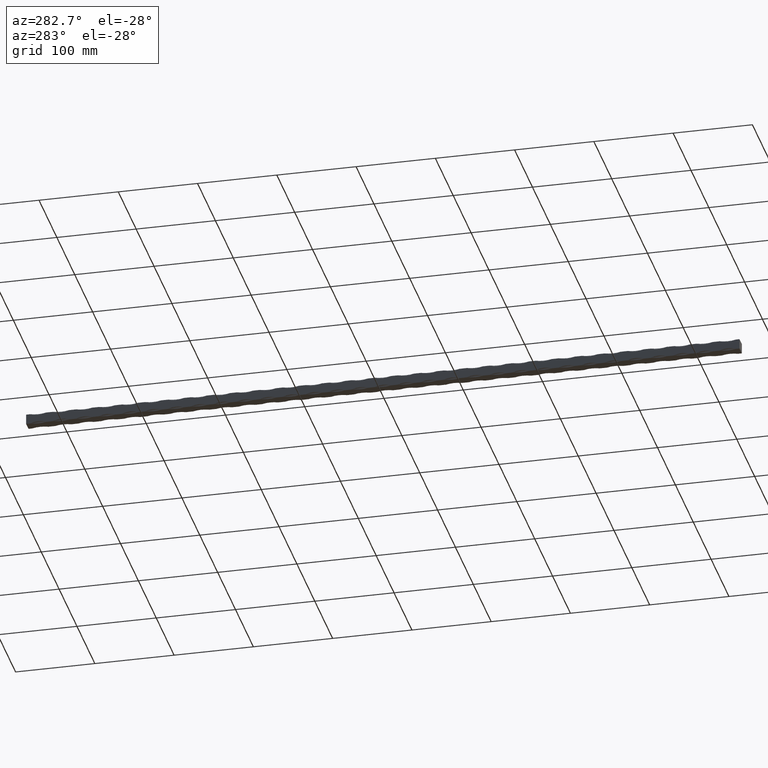
[diagram: clean part render]
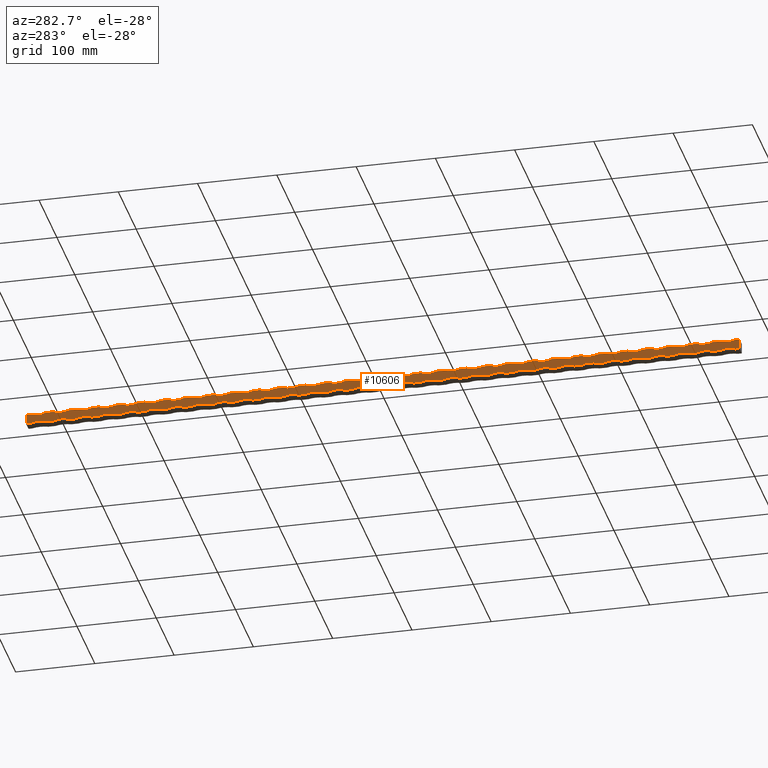
[diagram: same view with one face highlighted and labeled with its STEP entity id]
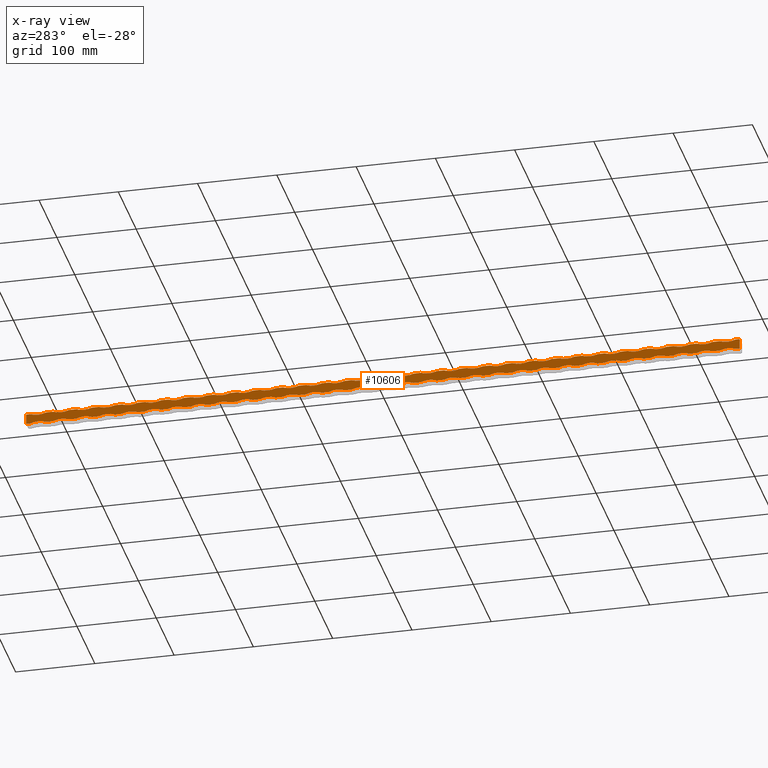
[diagram: x-ray of the same camera — body ghosted, the highlighted face saturated]
A machine part, auxiliary view. The second image highlights one B-rep face of the part: STEP entity #10606.
The next image is the same camera in x-ray: the body ghosted, the highlighted face saturated — about 0% of this face is hidden behind the body in this view.
In plain terms, the highlighted planar face has unit normal (1, 0, -0).
Its self-contained STEP definition (entity closure, byte-faithful):
#12 = DIRECTION ( 'NONE',  ( 1.000000000000000000, 0.0000000000000000000, -1.334402673828313100E-016 ) ) ;
#50 = AXIS2_PLACEMENT_3D ( 'NONE', #6781, #4561, #5598 ) ;
#51 = VERTEX_POINT ( 'NONE', #12319 ) ;
#52 = PLANE ( 'NONE',  #4879 ) ;
#82 = CIRCLE ( 'NONE', #4112, 26.00000000000000400 ) ;
#84 = CARTESIAN_POINT ( 'NONE',  ( -6.500000000000000900, 450.0000000000000000, -6.499999999999999100 ) ) ;
#85 = DIRECTION ( 'NONE',  ( -1.334402673828312800E-016, 0.0000000000000000000, -1.000000000000000000 ) ) ;
#88 = EDGE_CURVE ( 'NONE', #8012, #11672, #4038, .T. ) ;
#95 = CARTESIAN_POINT ( 'NONE',  ( -6.499999999999970700, -68.00000000000000000, -6.499999999999999100 ) ) ;
#109 = EDGE_CURVE ( 'NONE', #6897, #7293, #10085, .T. ) ;
#122 = CARTESIAN_POINT ( 'NONE',  ( -6.499999999999981300, 58.00000000000000000, -30.50000000000000000 ) ) ;
#173 = ORIENTED_EDGE ( 'NONE', *, *, #13633, .F. ) ;
#177 = ORIENTED_EDGE ( 'NONE', *, *, #5749, .T. ) ;
#191 = VERTEX_POINT ( 'NONE', #14675 ) ;
#204 = ORIENTED_EDGE ( 'NONE', *, *, #8885, .T. ) ;
#209 = ORIENTED_EDGE ( 'NONE', *, *, #1763, .T. ) ;
#234 = ORIENTED_EDGE ( 'NONE', *, *, #401, .T. ) ;
#245 = DIRECTION ( 'NONE',  ( 1.000000000000000000, 0.0000000000000000000, -1.334402673828313100E-016 ) ) ;
#285 = ORIENTED_EDGE ( 'NONE', *, *, #88, .T. ) ;
#308 = CARTESIAN_POINT ( 'NONE',  ( -6.499999999999977800, 97.00000000000000000, -6.500000000000000900 ) ) ;
#314 = LINE ( 'NONE', #901, #2795 ) ;
#316 = DIRECTION ( 'NONE',  ( 1.000000000000000000, 0.0000000000000000000, -1.334402673828313100E-016 ) ) ;
#318 = CARTESIAN_POINT ( 'NONE',  ( -6.499999999999999100, 450.0000000000000000, 6.500000000000000900 ) ) ;
#319 = CIRCLE ( 'NONE', #4642, 26.00000000000000400 ) ;
#331 = VERTEX_POINT ( 'NONE', #6115 ) ;
#335 = CARTESIAN_POINT ( 'NONE',  ( -6.499999999999988500, 222.0000000000000000, -6.499999999999999100 ) ) ;
#336 = ORIENTED_EDGE ( 'NONE', *, *, #13610, .T. ) ;
#346 = EDGE_CURVE ( 'NONE', #9945, #13643, #12913, .T. ) ;
#348 = CARTESIAN_POINT ( 'NONE',  ( -6.499999999999958300, -271.0000000000000000, -6.499999999999999100 ) ) ;
#352 = CARTESIAN_POINT ( 'NONE',  ( -6.499999999999952000, -406.0000000000000000, -30.50000000000000000 ) ) ;
#360 = AXIS2_PLACEMENT_3D ( 'NONE', #14567, #13587, #12502 ) ;
#374 = CARTESIAN_POINT ( 'NONE',  ( -6.499999999999999100, 163.9999999999999700, 6.500000000000000900 ) ) ;
#381 = EDGE_CURVE ( 'NONE', #1144, #6779, #2426, .T. ) ;
#386 = VERTEX_POINT ( 'NONE', #10507 ) ;
#387 = DIRECTION ( 'NONE',  ( -1.334402673828312800E-016, 0.0000000000000000000, -1.000000000000000000 ) ) ;
#401 = EDGE_CURVE ( 'NONE', #8512, #1253, #6527, .T. ) ;
#404 = AXIS2_PLACEMENT_3D ( 'NONE', #2173, #12458, #1058 ) ;
#420 = DIRECTION ( 'NONE',  ( 1.000000000000000000, 0.0000000000000000000, -1.334402673828313100E-016 ) ) ;
#431 = DIRECTION ( 'NONE',  ( -0.0000000000000000000, -1.000000000000000000, -0.0000000000000000000 ) ) ;
#435 = EDGE_CURVE ( 'NONE', #3523, #6093, #5821, .T. ) ;
#439 = LINE ( 'NONE', #607, #11266 ) ;
#466 = CARTESIAN_POINT ( 'NONE',  ( -6.499999999999999100, 396.0000000000000000, 6.500000000000000900 ) ) ;
#469 = VECTOR ( 'NONE', #6088, 1000.000000000000000 ) ;
#481 = LINE ( 'NONE', #10751, #9186 ) ;
#521 = DIRECTION ( 'NONE',  ( -0.0000000000000000000, -1.000000000000000000, -0.0000000000000000000 ) ) ;
#524 = CARTESIAN_POINT ( 'NONE',  ( -6.499999999999974200, 39.00000000000000000, -6.500000000000000900 ) ) ;
#539 = ORIENTED_EDGE ( 'NONE', *, *, #1786, .F. ) ;
#540 = EDGE_CURVE ( 'NONE', #3708, #10202, #4584, .T. ) ;
#551 = AXIS2_PLACEMENT_3D ( 'NONE', #2593, #6032, #387 ) ;
#566 = AXIS2_PLACEMENT_3D ( 'NONE', #4626, #3395, #4926 ) ;
#586 = EDGE_CURVE ( 'NONE', #6441, #13149, #7595, .T. ) ;
#607 = CARTESIAN_POINT ( 'NONE',  ( -6.500000000000000900, 450.0000000000000000, -6.499999999999999100 ) ) ;
#614 = LINE ( 'NONE', #12485, #2731 ) ;
#621 = CARTESIAN_POINT ( 'NONE',  ( -6.499999999999999100, -10.00000000000006800, 6.500000000000000900 ) ) ;
#657 = VECTOR ( 'NONE', #14390, 1000.000000000000000 ) ;
#682 = EDGE_CURVE ( 'NONE', #6897, #3207, #4210, .T. ) ;
#691 = DIRECTION ( 'NONE',  ( -1.334402673828312800E-016, 0.0000000000000000000, -1.000000000000000000 ) ) ;
#700 = EDGE_CURVE ( 'NONE', #12218, #5356, #10802, .T. ) ;
#748 = VERTEX_POINT ( 'NONE', #6615 ) ;
#755 = CARTESIAN_POINT ( 'NONE',  ( -6.499999999999979600, 29.00000000000000000, -30.50000000000000000 ) ) ;
#756 = EDGE_LOOP ( 'NONE', ( #10972, #12097, #6378, #1593, #173, #1263, #6730, #4898, #4579, #9584, #5738, #12631, #3436, #13057, #2667, #10747, #9812, #204, #10096, #3921, #8759, #4615, #14391, #3968, #539, #2066, #6113, #7282, #2668, #12927, #12407, #6254, #863, #9986, #776, #6970, #5281, #336, #11874, #8135, #3032, #13419, #10533, #1617, #9860, #10493, #7908, #2324, #11330, #5129, #4506, #5203, #11839, #1445, #7760, #5418, #4335, #1262, #9763, #2223, #11907, #11302, #12605, #5503, #7927, #8183, #14487, #1951, #7773, #14244, #1169, #4005, #2295, #7057, #6242, #209, #5022, #2411, #9690, #9000, #7255, #3089, #5140, #1394, #6939, #8629, #8710, #14278, #3126, #8322, #12825, #1448, #9278, #6327, #5885, #1073, #5102, #4251, #10375, #5390, #5354, #9511, #9969, #9946, #285, #7108, #2162, #9027, #177, #4412, #11185, #7790, #13088, #1437, #234, #6228, #1497, #3386, #14074, #10761, #9397, #11584, #3668, #6882, #9781, #2313, #6328, #12085 ) ) ;
#776 = ORIENTED_EDGE ( 'NONE', *, *, #13695, .F. ) ;
#787 = CIRCLE ( 'NONE', #50, 26.00000000000000400 ) ;
#809 = DIRECTION ( 'NONE',  ( 1.000000000000000000, 0.0000000000000000000, -1.334402673828313100E-016 ) ) ;
#817 = VECTOR ( 'NONE', #10725, 1000.000000000000000 ) ;
#823 = VERTEX_POINT ( 'NONE', #6196 ) ;
#831 = LINE ( 'NONE', #2841, #12887 ) ;
#838 = LINE ( 'NONE', #9973, #2067 ) ;
#843 = CARTESIAN_POINT ( 'NONE',  ( -6.499999999999952900, -358.0000000000000600, -6.499999999999999100 ) ) ;
#863 = ORIENTED_EDGE ( 'NONE', *, *, #11112, .F. ) ;
#875 = AXIS2_PLACEMENT_3D ( 'NONE', #1537, #12749, #2560 ) ;
#900 = DIRECTION ( 'NONE',  ( -1.334402673828312800E-016, 0.0000000000000000000, -1.000000000000000000 ) ) ;
#901 = CARTESIAN_POINT ( 'NONE',  ( -6.500000000000000900, 450.0000000000000000, -6.499999999999999100 ) ) ;
#952 = CARTESIAN_POINT ( 'NONE',  ( -6.499999999999992000, 348.0000000000000600, 30.50000000000000000 ) ) ;
#955 = DIRECTION ( 'NONE',  ( -0.0000000000000000000, -1.000000000000000000, -0.0000000000000000000 ) ) ;
#984 = EDGE_CURVE ( 'NONE', #10090, #10426, #838, .T. ) ;
#1000 = VERTEX_POINT ( 'NONE', #9427 ) ;
#1010 = CARTESIAN_POINT ( 'NONE',  ( -6.499999999999999100, 450.0000000000000000, 6.500000000000000900 ) ) ;
#1023 = CARTESIAN_POINT ( 'NONE',  ( -6.500000000000000900, 450.0000000000000000, -6.499999999999999100 ) ) ;
#1031 = DIRECTION ( 'NONE',  ( 1.000000000000000000, 0.0000000000000000000, -1.334402673828313100E-016 ) ) ;
#1033 = EDGE_CURVE ( 'NONE', #3164, #10457, #12544, .T. ) ;
#1053 = EDGE_CURVE ( 'NONE', #13175, #3028, #1202, .T. ) ;
#1058 = DIRECTION ( 'NONE',  ( -1.334402673828312800E-016, 0.0000000000000000000, -1.000000000000000000 ) ) ;
#1073 = ORIENTED_EDGE ( 'NONE', *, *, #3422, .T. ) ;
#1074 = VECTOR ( 'NONE', #4037, 1000.000000000000000 ) ;
#1076 = VERTEX_POINT ( 'NONE', #10823 ) ;
#1082 = VERTEX_POINT ( 'NONE', #10871 ) ;
#1083 = CARTESIAN_POINT ( 'NONE',  ( -6.499999999999999100, 309.0000000000000000, 6.500000000000000900 ) ) ;
#1087 = CARTESIAN_POINT ( 'NONE',  ( -6.500000000000000900, 450.0000000000000000, -6.499999999999999100 ) ) ;
#1112 = AXIS2_PLACEMENT_3D ( 'NONE', #1298, #316, #8197 ) ;
#1118 = CARTESIAN_POINT ( 'NONE',  ( -6.500000000000000900, 450.0000000000000000, -6.499999999999999100 ) ) ;
#1128 = VERTEX_POINT ( 'NONE', #6079 ) ;
#1133 = DIRECTION ( 'NONE',  ( -1.334402673828312800E-016, 0.0000000000000000000, -1.000000000000000000 ) ) ;
#1139 = CARTESIAN_POINT ( 'NONE',  ( -6.499999999999999100, 450.0000000000000000, 6.500000000000000900 ) ) ;
#1144 = VERTEX_POINT ( 'NONE', #8578 ) ;
#1169 = ORIENTED_EDGE ( 'NONE', *, *, #10495, .T. ) ;
#1202 = CIRCLE ( 'NONE', #7660, 26.00000000000000400 ) ;
#1206 = EDGE_CURVE ( 'NONE', #9650, #7605, #7045, .T. ) ;
#1214 = CARTESIAN_POINT ( 'NONE',  ( -6.499999999999956500, -232.0000000000000000, 30.50000000000000000 ) ) ;
#1253 = VERTEX_POINT ( 'NONE', #13460 ) ;
#1255 = CARTESIAN_POINT ( 'NONE',  ( -6.499999999999951200, -319.0000000000000000, 30.50000000000000000 ) ) ;
#1262 = ORIENTED_EDGE ( 'NONE', *, *, #2902, .T. ) ;
#1263 = ORIENTED_EDGE ( 'NONE', *, *, #6549, .T. ) ;
#1277 = LINE ( 'NONE', #2230, #8380 ) ;
#1283 = CARTESIAN_POINT ( 'NONE',  ( -6.499999999999972500, 10.00000000000000000, 6.500000000000000900 ) ) ;
#1298 = CARTESIAN_POINT ( 'NONE',  ( -6.499999999999963600, -232.0000000000000000, -30.50000000000000000 ) ) ;
#1354 = DIRECTION ( 'NONE',  ( -0.0000000000000000000, -1.000000000000000000, -0.0000000000000000000 ) ) ;
#1368 = CIRCLE ( 'NONE', #10380, 26.00000000000000400 ) ;
#1387 = CARTESIAN_POINT ( 'NONE',  ( -6.500000000000000900, 450.0000000000000000, -6.499999999999999100 ) ) ;
#1394 = ORIENTED_EDGE ( 'NONE', *, *, #11662, .T. ) ;
#1415 = LINE ( 'NONE', #10737, #6377 ) ;
#1426 = AXIS2_PLACEMENT_3D ( 'NONE', #9818, #6417, #7555 ) ;
#1437 = ORIENTED_EDGE ( 'NONE', *, *, #11028, .T. ) ;
#1439 = AXIS2_PLACEMENT_3D ( 'NONE', #8085, #9247, #3494 ) ;
#1445 = ORIENTED_EDGE ( 'NONE', *, *, #10890, .T. ) ;
#1448 = ORIENTED_EDGE ( 'NONE', *, *, #8868, .T. ) ;
#1497 = ORIENTED_EDGE ( 'NONE', *, *, #4788, .T. ) ;
#1502 = CARTESIAN_POINT ( 'NONE',  ( -6.499999999999981300, 155.0000000000000300, 6.500000000000000900 ) ) ;
#1520 = VERTEX_POINT ( 'NONE', #14464 ) ;
#1536 = VECTOR ( 'NONE', #3865, 1000.000000000000000 ) ;
#1537 = CARTESIAN_POINT ( 'NONE',  ( -6.499999999999995600, 406.0000000000000000, 30.50000000000000000 ) ) ;
#1538 = CARTESIAN_POINT ( 'NONE',  ( -6.499999999999949400, -348.0000000000000600, 30.50000000000000000 ) ) ;
#1554 = CARTESIAN_POINT ( 'NONE',  ( -6.499999999999958300, -222.0000000000000000, 6.500000000000000900 ) ) ;
#1580 = DIRECTION ( 'NONE',  ( -0.0000000000000000000, -1.000000000000000000, -0.0000000000000000000 ) ) ;
#1593 = ORIENTED_EDGE ( 'NONE', *, *, #2922, .T. ) ;
#1603 = CARTESIAN_POINT ( 'NONE',  ( -6.500000000000000900, 450.0000000000000000, -6.499999999999999100 ) ) ;
#1609 = CARTESIAN_POINT ( 'NONE',  ( -6.500000000000000900, 450.0000000000000000, -6.499999999999999100 ) ) ;
#1617 = ORIENTED_EDGE ( 'NONE', *, *, #5201, .T. ) ;
#1626 = DIRECTION ( 'NONE',  ( 1.000000000000000000, 0.0000000000000000000, -1.334402673828313100E-016 ) ) ;
#1636 = CARTESIAN_POINT ( 'NONE',  ( -6.499999999999999100, 47.99999999999994300, 6.500000000000000900 ) ) ;
#1741 = DIRECTION ( 'NONE',  ( 1.000000000000000000, 0.0000000000000000000, -1.334402673828313100E-016 ) ) ;
#1742 = CARTESIAN_POINT ( 'NONE',  ( -6.500000000000000900, 450.0000000000000000, -6.499999999999999100 ) ) ;
#1763 = EDGE_CURVE ( 'NONE', #12957, #5214, #3278, .T. ) ;
#1781 = CARTESIAN_POINT ( 'NONE',  ( -6.500000000000000900, 450.0000000000000000, -6.499999999999999100 ) ) ;
#1786 = EDGE_CURVE ( 'NONE', #5608, #14080, #14632, .T. ) ;
#1836 = DIRECTION ( 'NONE',  ( -0.0000000000000000000, -1.000000000000000000, -0.0000000000000000000 ) ) ;
#1842 = CARTESIAN_POINT ( 'NONE',  ( -6.499999999999968900, -29.00000000000000000, 30.50000000000000000 ) ) ;
#1861 = CIRCLE ( 'NONE', #3403, 26.00000000000000400 ) ;
#1863 = LINE ( 'NONE', #84, #8095 ) ;
#1877 = AXIS2_PLACEMENT_3D ( 'NONE', #12479, #12, #13475 ) ;
#1890 = DIRECTION ( 'NONE',  ( -1.334402673828312800E-016, 0.0000000000000000000, -1.000000000000000000 ) ) ;
#1901 = VERTEX_POINT ( 'NONE', #11408 ) ;
#1909 = CARTESIAN_POINT ( 'NONE',  ( -6.499999999999999100, 396.0000000000000000, -6.499999999999999100 ) ) ;
#1951 = ORIENTED_EDGE ( 'NONE', *, *, #5568, .F. ) ;
#1952 = EDGE_CURVE ( 'NONE', #3743, #2942, #3634, .T. ) ;
#1960 = CARTESIAN_POINT ( 'NONE',  ( -6.499999999999995600, 338.0000000000000000, -6.499999999999999100 ) ) ;
#1970 = EDGE_CURVE ( 'NONE', #7312, #7099, #10942, .T. ) ;
#1985 = DIRECTION ( 'NONE',  ( -0.0000000000000000000, -1.000000000000000000, -0.0000000000000000000 ) ) ;
#2004 = CARTESIAN_POINT ( 'NONE',  ( -6.499999999999960000, -193.0000000000000000, -6.500000000000000900 ) ) ;
#2015 = AXIS2_PLACEMENT_3D ( 'NONE', #5052, #7270, #8314 ) ;
#2018 = CIRCLE ( 'NONE', #12327, 26.00000000000000400 ) ;
#2021 = DIRECTION ( 'NONE',  ( 1.000000000000000000, 0.0000000000000000000, -1.334402673828313100E-016 ) ) ;
#2038 = EDGE_CURVE ( 'NONE', #10202, #12957, #7380, .T. ) ;
#2046 = VECTOR ( 'NONE', #431, 1000.000000000000000 ) ;
#2066 = ORIENTED_EDGE ( 'NONE', *, *, #4968, .T. ) ;
#2067 = VECTOR ( 'NONE', #3133, 1000.000000000000000 ) ;
#2099 = CARTESIAN_POINT ( 'NONE',  ( -6.499999999999999100, 450.0000000000000000, 6.500000000000000900 ) ) ;
#2107 = DIRECTION ( 'NONE',  ( -0.0000000000000000000, -1.000000000000000000, -0.0000000000000000000 ) ) ;
#2139 = EDGE_CURVE ( 'NONE', #4297, #8860, #2395, .T. ) ;
#2147 = CARTESIAN_POINT ( 'NONE',  ( -6.499999999999976000, 68.00000000000000000, 6.500000000000000900 ) ) ;
#2148 = AXIS2_PLACEMENT_3D ( 'NONE', #11238, #2212, #5614 ) ;
#2154 = VECTOR ( 'NONE', #11380, 1000.000000000000000 ) ;
#2160 = EDGE_CURVE ( 'NONE', #9326, #6821, #4003, .T. ) ;
#2162 = ORIENTED_EDGE ( 'NONE', *, *, #7670, .T. ) ;
#2167 = DIRECTION ( 'NONE',  ( -1.334402673828312800E-016, 0.0000000000000000000, -1.000000000000000000 ) ) ;
#2173 = CARTESIAN_POINT ( 'NONE',  ( -6.499999999999952900, -290.0000000000000600, 30.50000000000000000 ) ) ;
#2187 = VECTOR ( 'NONE', #6551, 1000.000000000000000 ) ;
#2189 = CIRCLE ( 'NONE', #10260, 26.00000000000000400 ) ;
#2190 = DIRECTION ( 'NONE',  ( -0.0000000000000000000, -1.000000000000000000, -0.0000000000000000000 ) ) ;
#2212 = DIRECTION ( 'NONE',  ( 1.000000000000000000, 0.0000000000000000000, -1.334402673828313100E-016 ) ) ;
#2223 = ORIENTED_EDGE ( 'NONE', *, *, #4639, .T. ) ;
#2230 = CARTESIAN_POINT ( 'NONE',  ( -6.499999999999999100, 450.0000000000000000, 6.500000000000000900 ) ) ;
#2250 = VERTEX_POINT ( 'NONE', #3455 ) ;
#2282 = EDGE_CURVE ( 'NONE', #3557, #9273, #7902, .T. ) ;
#2295 = ORIENTED_EDGE ( 'NONE', *, *, #7346, .T. ) ;
#2313 = ORIENTED_EDGE ( 'NONE', *, *, #3875, .T. ) ;
#2319 = CARTESIAN_POINT ( 'NONE',  ( -6.499999999999993800, 309.0000000000000000, -6.499999999999999100 ) ) ;
#2320 = CIRCLE ( 'NONE', #9170, 26.00000000000000400 ) ;
#2324 = ORIENTED_EDGE ( 'NONE', *, *, #5632, .T. ) ;
#2331 = EDGE_CURVE ( 'NONE', #3483, #8776, #1863, .T. ) ;
#2338 = CIRCLE ( 'NONE', #6559, 26.00000000000000400 ) ;
#2395 = CIRCLE ( 'NONE', #7574, 26.00000000000000400 ) ;
#2411 = ORIENTED_EDGE ( 'NONE', *, *, #8563, .T. ) ;
#2426 = CIRCLE ( 'NONE', #3651, 26.00000000000000400 ) ;
#2445 = EDGE_CURVE ( 'NONE', #8681, #3743, #5956, .T. ) ;
#2492 = CARTESIAN_POINT ( 'NONE',  ( -6.499999999999961800, -261.0000000000000000, -30.50000000000000000 ) ) ;
#2501 = DIRECTION ( 'NONE',  ( 1.000000000000000000, 0.0000000000000000000, -1.334402673828313100E-016 ) ) ;
#2514 = CARTESIAN_POINT ( 'NONE',  ( -6.499999999999983100, 135.0000000000000000, -6.499999999999999100 ) ) ;
#2518 = CIRCLE ( 'NONE', #6678, 26.00000000000000400 ) ;
#2532 = CARTESIAN_POINT ( 'NONE',  ( -6.500000000000000900, 450.0000000000000000, -6.499999999999999100 ) ) ;
#2544 = CARTESIAN_POINT ( 'NONE',  ( -6.499999999999999100, -450.0000000000000000, 6.500000000000000900 ) ) ;
#2549 = DIRECTION ( 'NONE',  ( -0.0000000000000000000, -1.000000000000000000, -0.0000000000000000000 ) ) ;
#2555 = CARTESIAN_POINT ( 'NONE',  ( -6.499999999999999100, 450.0000000000000000, 6.500000000000000900 ) ) ;
#2560 = DIRECTION ( 'NONE',  ( -1.334402673828312800E-016, 0.0000000000000000000, -1.000000000000000000 ) ) ;
#2574 = DIRECTION ( 'NONE',  ( -1.334402673828312800E-016, 0.0000000000000000000, -1.000000000000000000 ) ) ;
#2589 = CIRCLE ( 'NONE', #13254, 26.00000000000000400 ) ;
#2593 = CARTESIAN_POINT ( 'NONE',  ( -6.499999999999970700, 0.0000000000000000000, 30.50000000000000000 ) ) ;
#2621 = AXIS2_PLACEMENT_3D ( 'NONE', #13271, #13318, #8911 ) ;
#2633 = DIRECTION ( 'NONE',  ( 1.334402673828313300E-016, 0.0000000000000000000, 1.000000000000000000 ) ) ;
#2667 = ORIENTED_EDGE ( 'NONE', *, *, #11492, .F. ) ;
#2668 = ORIENTED_EDGE ( 'NONE', *, *, #5105, .F. ) ;
#2675 = CARTESIAN_POINT ( 'NONE',  ( -6.500000000000000900, 450.0000000000000000, -6.499999999999999100 ) ) ;
#2688 = DIRECTION ( 'NONE',  ( -1.334402673828312800E-016, 0.0000000000000000000, -1.000000000000000000 ) ) ;
#2692 = CARTESIAN_POINT ( 'NONE',  ( -6.499999999999999100, 445.0000000000000000, 6.500000000000000900 ) ) ;
#2718 = CARTESIAN_POINT ( 'NONE',  ( -6.499999999999979600, 77.00000000000000000, -6.499999999999999100 ) ) ;
#2728 = CARTESIAN_POINT ( 'NONE',  ( -6.499999999999974200, -10.00000000000000700, -6.499999999999999100 ) ) ;
#2731 = VECTOR ( 'NONE', #8024, 1000.000000000000000 ) ;
#2747 = VERTEX_POINT ( 'NONE', #13720 ) ;
#2795 = VECTOR ( 'NONE', #13257, 1000.000000000000000 ) ;
#2841 = CARTESIAN_POINT ( 'NONE',  ( -6.499999999999999100, 450.0000000000000000, 6.500000000000000900 ) ) ;
#2867 = CARTESIAN_POINT ( 'NONE',  ( -6.499999999999968900, -145.0000000000000300, -30.50000000000000000 ) ) ;
#2875 = DIRECTION ( 'NONE',  ( -1.334402673828312800E-016, 0.0000000000000000000, -1.000000000000000000 ) ) ;
#2880 = VERTEX_POINT ( 'NONE', #9218 ) ;
#2883 = DIRECTION ( 'NONE',  ( 1.000000000000000000, 0.0000000000000000000, -1.334402673828313100E-016 ) ) ;
#2884 = DIRECTION ( 'NONE',  ( -0.0000000000000000000, -1.000000000000000000, -0.0000000000000000000 ) ) ;
#2885 = CIRCLE ( 'NONE', #6645, 26.00000000000000400 ) ;
#2902 = EDGE_CURVE ( 'NONE', #10326, #191, #2189, .T. ) ;
#2910 = DIRECTION ( 'NONE',  ( 1.000000000000000000, 0.0000000000000000000, -1.334402673828313100E-016 ) ) ;
#2922 = EDGE_CURVE ( 'NONE', #1128, #3958, #12325, .T. ) ;
#2926 = CARTESIAN_POINT ( 'NONE',  ( -6.499999999999976000, -29.00000000000000000, -30.50000000000000000 ) ) ;
#2928 = VERTEX_POINT ( 'NONE', #1502 ) ;
#2934 = AXIS2_PLACEMENT_3D ( 'NONE', #11023, #6431, #5453 ) ;
#2940 = VECTOR ( 'NONE', #10288, 1000.000000000000000 ) ;
#2942 = VERTEX_POINT ( 'NONE', #10406 ) ;
#2952 = CARTESIAN_POINT ( 'NONE',  ( -6.500000000000000900, 450.0000000000000000, -6.499999999999999100 ) ) ;
#2974 = CARTESIAN_POINT ( 'NONE',  ( -6.499999999999999100, 367.0000000000000000, 6.500000000000000900 ) ) ;
#2975 = EDGE_CURVE ( 'NONE', #6426, #12879, #5067, .T. ) ;
#2976 = CARTESIAN_POINT ( 'NONE',  ( -6.500000000000000900, 450.0000000000000000, -6.499999999999999100 ) ) ;
#2996 = VERTEX_POINT ( 'NONE', #11591 ) ;
#3028 = VERTEX_POINT ( 'NONE', #6257 ) ;
#3032 = ORIENTED_EDGE ( 'NONE', *, *, #700, .F. ) ;
#3044 = VERTEX_POINT ( 'NONE', #7410 ) ;
#3051 = CARTESIAN_POINT ( 'NONE',  ( -6.499999999999997300, 367.0000000000000000, -6.499999999999999100 ) ) ;
#3071 = EDGE_CURVE ( 'NONE', #9230, #14250, #3075, .T. ) ;
#3075 = LINE ( 'NONE', #8513, #7166 ) ;
#3079 = CARTESIAN_POINT ( 'NONE',  ( -6.499999999999963600, -135.0000000000000000, 6.500000000000000900 ) ) ;
#3083 = CARTESIAN_POINT ( 'NONE',  ( -6.499999999999988500, 290.0000000000000600, 30.50000000000000000 ) ) ;
#3089 = ORIENTED_EDGE ( 'NONE', *, *, #1053, .T. ) ;
#3091 = CARTESIAN_POINT ( 'NONE',  ( -6.499999999999999100, 450.0000000000000000, 6.500000000000000900 ) ) ;
#3094 = CIRCLE ( 'NONE', #1439, 26.00000000000000400 ) ;
#3126 = ORIENTED_EDGE ( 'NONE', *, *, #6131, .T. ) ;
#3127 = VECTOR ( 'NONE', #521, 1000.000000000000000 ) ;
#3133 = DIRECTION ( 'NONE',  ( -0.0000000000000000000, -1.000000000000000000, -0.0000000000000000000 ) ) ;
#3146 = DIRECTION ( 'NONE',  ( 1.000000000000000000, 0.0000000000000000000, -1.334402673828313100E-016 ) ) ;
#3154 = EDGE_CURVE ( 'NONE', #748, #331, #11805, .T. ) ;
#3159 = VECTOR ( 'NONE', #3700, 1000.000000000000000 ) ;
#3164 = VERTEX_POINT ( 'NONE', #621 ) ;
#3193 = CARTESIAN_POINT ( 'NONE',  ( -6.499999999999946700, -396.0000000000000000, 6.500000000000000900 ) ) ;
#3207 = VERTEX_POINT ( 'NONE', #6506 ) ;
#3215 = AXIS2_PLACEMENT_3D ( 'NONE', #9383, #5849, #9292 ) ;
#3222 = DIRECTION ( 'NONE',  ( -0.0000000000000000000, -1.000000000000000000, -0.0000000000000000000 ) ) ;
#3254 = EDGE_CURVE ( 'NONE', #5478, #2928, #13394, .T. ) ;
#3262 = DIRECTION ( 'NONE',  ( 1.000000000000000000, 0.0000000000000000000, -1.334402673828313100E-016 ) ) ;
#3271 = CARTESIAN_POINT ( 'NONE',  ( -6.499999999999947600, -377.0000000000000000, 30.50000000000000000 ) ) ;
#3278 = CIRCLE ( 'NONE', #4828, 26.00000000000000400 ) ;
#3287 = LINE ( 'NONE', #2099, #10808 ) ;
#3315 = DIRECTION ( 'NONE',  ( 1.000000000000000000, 0.0000000000000000000, -1.334402673828313100E-016 ) ) ;
#3326 = LINE ( 'NONE', #1781, #9780 ) ;
#3373 = CIRCLE ( 'NONE', #2015, 26.00000000000000400 ) ;
#3382 = CARTESIAN_POINT ( 'NONE',  ( -6.499999999999948500, -416.0000000000000600, -6.499999999999999100 ) ) ;
#3386 = ORIENTED_EDGE ( 'NONE', *, *, #2139, .T. ) ;
#3390 = CIRCLE ( 'NONE', #8947, 26.00000000000000400 ) ;
#3395 = DIRECTION ( 'NONE',  ( 1.000000000000000000, 0.0000000000000000000, -1.334402673828313100E-016 ) ) ;
#3403 = AXIS2_PLACEMENT_3D ( 'NONE', #13812, #2501, #4806 ) ;
#3420 = DIRECTION ( 'NONE',  ( 1.000000000000000000, 0.0000000000000000000, -1.334402673828313100E-016 ) ) ;
#3422 = EDGE_CURVE ( 'NONE', #8776, #9945, #2018, .T. ) ;
#3436 = ORIENTED_EDGE ( 'NONE', *, *, #14068, .F. ) ;
#3447 = CARTESIAN_POINT ( 'NONE',  ( -6.500000000000000900, 450.0000000000000000, -6.499999999999999100 ) ) ;
#3448 = CIRCLE ( 'NONE', #11222, 26.00000000000000400 ) ;
#3455 = CARTESIAN_POINT ( 'NONE',  ( -6.499999999999999100, 445.0000000000000000, -6.500000000000000900 ) ) ;
#3483 = VERTEX_POINT ( 'NONE', #2718 ) ;
#3494 = DIRECTION ( 'NONE',  ( -1.334402673828312800E-016, 0.0000000000000000000, -1.000000000000000000 ) ) ;
#3523 = VERTEX_POINT ( 'NONE', #10921 ) ;
#3531 = LINE ( 'NONE', #1387, #3159 ) ;
#3545 = VERTEX_POINT ( 'NONE', #9790 ) ;
#3546 = CIRCLE ( 'NONE', #14116, 26.00000000000000400 ) ;
#3553 = EDGE_CURVE ( 'NONE', #1082, #3207, #3781, .T. ) ;
#3557 = VERTEX_POINT ( 'NONE', #5114 ) ;
#3576 = EDGE_CURVE ( 'NONE', #8860, #6690, #8785, .T. ) ;
#3578 = AXIS2_PLACEMENT_3D ( 'NONE', #12623, #8123, #9282 ) ;
#3589 = CARTESIAN_POINT ( 'NONE',  ( -6.499999999999999100, 450.0000000000000000, 6.500000000000000900 ) ) ;
#3617 = VERTEX_POINT ( 'NONE', #5158 ) ;
#3618 = LINE ( 'NONE', #3447, #11116 ) ;
#3634 = LINE ( 'NONE', #12376, #13231 ) ;
#3651 = AXIS2_PLACEMENT_3D ( 'NONE', #2926, #14134, #4031 ) ;
#3654 = VECTOR ( 'NONE', #8767, 1000.000000000000000 ) ;
#3668 = ORIENTED_EDGE ( 'NONE', *, *, #5767, .T. ) ;
#3700 = DIRECTION ( 'NONE',  ( -0.0000000000000000000, -1.000000000000000000, -0.0000000000000000000 ) ) ;
#3708 = VERTEX_POINT ( 'NONE', #6290 ) ;
#3743 = VERTEX_POINT ( 'NONE', #8887 ) ;
#3772 = EDGE_CURVE ( 'NONE', #7548, #191, #6284, .T. ) ;
#3778 = VECTOR ( 'NONE', #8481, 1000.000000000000000 ) ;
#3781 = CIRCLE ( 'NONE', #13838, 26.00000000000000400 ) ;
#3783 = CARTESIAN_POINT ( 'NONE',  ( -6.499999999999999100, 134.9999999999999700, 6.500000000000000900 ) ) ;
#3784 = AXIS2_PLACEMENT_3D ( 'NONE', #952, #3146, #2167 ) ;
#3792 = CIRCLE ( 'NONE', #875, 26.00000000000000400 ) ;
#3837 = VERTEX_POINT ( 'NONE', #14541 ) ;
#3865 = DIRECTION ( 'NONE',  ( -0.0000000000000000000, -1.000000000000000000, -0.0000000000000000000 ) ) ;
#3875 = EDGE_CURVE ( 'NONE', #10492, #11525, #5750, .T. ) ;
#3887 = CARTESIAN_POINT ( 'NONE',  ( -6.499999999999949400, -367.0000000000000000, -6.500000000000000900 ) ) ;
#3906 = VERTEX_POINT ( 'NONE', #8938 ) ;
#3909 = DIRECTION ( 'NONE',  ( -1.334402673828312800E-016, 0.0000000000000000000, -1.000000000000000000 ) ) ;
#3910 = DIRECTION ( 'NONE',  ( -0.0000000000000000000, -1.000000000000000000, -0.0000000000000000000 ) ) ;
#3918 = DIRECTION ( 'NONE',  ( -0.0000000000000000000, -1.000000000000000000, -0.0000000000000000000 ) ) ;
#3921 = ORIENTED_EDGE ( 'NONE', *, *, #11897, .T. ) ;
#3924 = CARTESIAN_POINT ( 'NONE',  ( -6.499999999999999100, 450.0000000000000000, 6.500000000000000900 ) ) ;
#3933 = DIRECTION ( 'NONE',  ( -0.0000000000000000000, -1.000000000000000000, -0.0000000000000000000 ) ) ;
#3939 = EDGE_CURVE ( 'NONE', #9393, #10765, #8048, .T. ) ;
#3950 = DIRECTION ( 'NONE',  ( -0.0000000000000000000, -1.000000000000000000, -0.0000000000000000000 ) ) ;
#3952 = EDGE_CURVE ( 'NONE', #2942, #9717, #9852, .T. ) ;
#3958 = VERTEX_POINT ( 'NONE', #2544 ) ;
#3959 = DIRECTION ( 'NONE',  ( -0.0000000000000000000, -1.000000000000000000, -0.0000000000000000000 ) ) ;
#3968 = ORIENTED_EDGE ( 'NONE', *, *, #10226, .T. ) ;
#3978 = DIRECTION ( 'NONE',  ( -0.0000000000000000000, -1.000000000000000000, -0.0000000000000000000 ) ) ;
#3984 = CARTESIAN_POINT ( 'NONE',  ( -6.499999999999999100, -155.0000000000001100, 6.500000000000000900 ) ) ;
#4003 = LINE ( 'NONE', #5391, #11991 ) ;
#4005 = ORIENTED_EDGE ( 'NONE', *, *, #5315, .T. ) ;
#4031 = DIRECTION ( 'NONE',  ( -1.334402673828312800E-016, 0.0000000000000000000, -1.000000000000000000 ) ) ;
#4033 = CARTESIAN_POINT ( 'NONE',  ( -6.499999999999986700, 261.0000000000000000, 30.50000000000000000 ) ) ;
#4037 = DIRECTION ( 'NONE',  ( 1.334402673828313300E-016, 0.0000000000000000000, 1.000000000000000000 ) ) ;
#4038 = LINE ( 'NONE', #1023, #7058 ) ;
#4084 = DIRECTION ( 'NONE',  ( 1.000000000000000000, 0.0000000000000000000, -1.334402673828313100E-016 ) ) ;
#4112 = AXIS2_PLACEMENT_3D ( 'NONE', #3271, #3315, #4446 ) ;
#4147 = VECTOR ( 'NONE', #13340, 1000.000000000000000 ) ;
#4156 = VECTOR ( 'NONE', #13731, 1000.000000000000000 ) ;
#4158 = VECTOR ( 'NONE', #1985, 1000.000000000000000 ) ;
#4159 = DIRECTION ( 'NONE',  ( 1.000000000000000000, 0.0000000000000000000, -1.334402673828313100E-016 ) ) ;
#4177 = EDGE_CURVE ( 'NONE', #3545, #13149, #2885, .T. ) ;
#4189 = DIRECTION ( 'NONE',  ( -1.334402673828312800E-016, 0.0000000000000000000, -1.000000000000000000 ) ) ;
#4193 = VECTOR ( 'NONE', #8393, 1000.000000000000000 ) ;
#4210 = LINE ( 'NONE', #5959, #9029 ) ;
#4251 = ORIENTED_EDGE ( 'NONE', *, *, #11324, .T. ) ;
#4289 = EDGE_CURVE ( 'NONE', #12246, #9802, #3390, .T. ) ;
#4297 = VERTEX_POINT ( 'NONE', #7752 ) ;
#4318 = VECTOR ( 'NONE', #7614, 1000.000000000000000 ) ;
#4335 = ORIENTED_EDGE ( 'NONE', *, *, #7755, .F. ) ;
#4345 = VECTOR ( 'NONE', #2633, 1000.000000000000000 ) ;
#4362 = CIRCLE ( 'NONE', #3578, 26.00000000000000400 ) ;
#4369 = CARTESIAN_POINT ( 'NONE',  ( -6.499999999999954700, -280.0000000000000000, 6.500000000000000900 ) ) ;
#4386 = DIRECTION ( 'NONE',  ( -1.334402673828312800E-016, 0.0000000000000000000, -1.000000000000000000 ) ) ;
#4389 = DIRECTION ( 'NONE',  ( -0.0000000000000000000, -1.000000000000000000, -0.0000000000000000000 ) ) ;
#4412 = ORIENTED_EDGE ( 'NONE', *, *, #9723, .T. ) ;
#4434 = DIRECTION ( 'NONE',  ( -1.334402673828312800E-016, 0.0000000000000000000, -1.000000000000000000 ) ) ;
#4438 = VERTEX_POINT ( 'NONE', #10806 ) ;
#4446 = DIRECTION ( 'NONE',  ( -1.334402673828312800E-016, 0.0000000000000000000, -1.000000000000000000 ) ) ;
#4461 = CARTESIAN_POINT ( 'NONE',  ( -6.499999999999977800, 47.99999999999999300, -6.499999999999999100 ) ) ;
#4465 = CIRCLE ( 'NONE', #1112, 26.00000000000000400 ) ;
#4472 = VERTEX_POINT ( 'NONE', #5033 ) ;
#4473 = DIRECTION ( 'NONE',  ( -0.0000000000000000000, -1.000000000000000000, -0.0000000000000000000 ) ) ;
#4484 = AXIS2_PLACEMENT_3D ( 'NONE', #12637, #5798, #9336 ) ;
#4489 = DIRECTION ( 'NONE',  ( -1.334402673828312800E-016, 0.0000000000000000000, -1.000000000000000000 ) ) ;
#4505 = AXIS2_PLACEMENT_3D ( 'NONE', #10499, #12755, #13885 ) ;
#4506 = ORIENTED_EDGE ( 'NONE', *, *, #8444, .F. ) ;
#4514 = CARTESIAN_POINT ( 'NONE',  ( -6.499999999999943200, -435.0000000000000000, 30.50000000000000000 ) ) ;
#4548 = EDGE_CURVE ( 'NONE', #7414, #5356, #5206, .T. ) ;
#4561 = DIRECTION ( 'NONE',  ( 1.000000000000000000, 0.0000000000000000000, -1.334402673828313100E-016 ) ) ;
#4566 = CIRCLE ( 'NONE', #7079, 26.00000000000000400 ) ;
#4569 = CARTESIAN_POINT ( 'NONE',  ( -6.499999999999974200, 39.00000000000000000, 6.500000000000000900 ) ) ;
#4577 = DIRECTION ( 'NONE',  ( -1.334402673828312800E-016, 0.0000000000000000000, -1.000000000000000000 ) ) ;
#4579 = ORIENTED_EDGE ( 'NONE', *, *, #586, .F. ) ;
#4584 = CIRCLE ( 'NONE', #7948, 26.00000000000000400 ) ;
#4586 = DIRECTION ( 'NONE',  ( 1.000000000000000000, 0.0000000000000000000, -1.334402673828313100E-016 ) ) ;
#4596 = AXIS2_PLACEMENT_3D ( 'NONE', #755, #1741, #2875 ) ;
#4615 = ORIENTED_EDGE ( 'NONE', *, *, #13973, .T. ) ;
#4622 = EDGE_CURVE ( 'NONE', #8102, #8681, #10532, .T. ) ;
#4623 = LINE ( 'NONE', #11884, #1074 ) ;
#4626 = CARTESIAN_POINT ( 'NONE',  ( -6.499999999999958300, -203.0000000000000000, 30.50000000000000000 ) ) ;
#4639 = EDGE_CURVE ( 'NONE', #7548, #6821, #8941, .T. ) ;
#4642 = AXIS2_PLACEMENT_3D ( 'NONE', #1842, #809, #11972 ) ;
#4650 = CARTESIAN_POINT ( 'NONE',  ( -6.499999999999949400, -367.0000000000000000, 6.500000000000000900 ) ) ;
#4674 = AXIS2_PLACEMENT_3D ( 'NONE', #12613, #13750, #13550 ) ;
#4680 = EDGE_CURVE ( 'NONE', #6005, #8012, #8772, .T. ) ;
#4682 = AXIS2_PLACEMENT_3D ( 'NONE', #7481, #4159, #13140 ) ;
#4698 = VERTEX_POINT ( 'NONE', #4369 ) ;
#4722 = CARTESIAN_POINT ( 'NONE',  ( -6.499999999999999100, 450.0000000000000000, 6.500000000000000900 ) ) ;
#4766 = DIRECTION ( 'NONE',  ( 1.000000000000000000, 0.0000000000000000000, -1.334402673828313100E-016 ) ) ;
#4788 = EDGE_CURVE ( 'NONE', #9181, #4297, #6080, .T. ) ;
#4806 = DIRECTION ( 'NONE',  ( -1.334402673828312800E-016, 0.0000000000000000000, -1.000000000000000000 ) ) ;
#4828 = AXIS2_PLACEMENT_3D ( 'NONE', #14241, #13221, #4189 ) ;
#4840 = DIRECTION ( 'NONE',  ( 1.000000000000000000, 0.0000000000000000000, -1.334402673828313100E-016 ) ) ;
#4841 = EDGE_CURVE ( 'NONE', #8696, #14059, #2338, .T. ) ;
#4852 = AXIS2_PLACEMENT_3D ( 'NONE', #10896, #10937, #1890 ) ;
#4867 = LINE ( 'NONE', #9629, #3778 ) ;
#4879 = AXIS2_PLACEMENT_3D ( 'NONE', #1118, #6770, #5782 ) ;
#4887 = CARTESIAN_POINT ( 'NONE',  ( -6.500000000000000900, 450.0000000000000000, -6.499999999999999100 ) ) ;
#4896 = CARTESIAN_POINT ( 'NONE',  ( -6.499999999999968000, -77.00000000000001400, -6.500000000000000900 ) ) ;
#4898 = ORIENTED_EDGE ( 'NONE', *, *, #4177, .T. ) ;
#4906 = VECTOR ( 'NONE', #5654, 1000.000000000000000 ) ;
#4926 = DIRECTION ( 'NONE',  ( -1.334402673828312800E-016, 0.0000000000000000000, -1.000000000000000000 ) ) ;
#4968 = EDGE_CURVE ( 'NONE', #5608, #7248, #11464, .T. ) ;
#4986 = VERTEX_POINT ( 'NONE', #308 ) ;
#5013 = CARTESIAN_POINT ( 'NONE',  ( -6.499999999999999100, 450.0000000000000000, 6.500000000000000900 ) ) ;
#5022 = ORIENTED_EDGE ( 'NONE', *, *, #8721, .T. ) ;
#5029 = LINE ( 'NONE', #7244, #9834 ) ;
#5030 = CARTESIAN_POINT ( 'NONE',  ( -6.499999999999961800, -164.0000000000000000, 6.500000000000000900 ) ) ;
#5033 = CARTESIAN_POINT ( 'NONE',  ( -6.499999999999999100, -445.0000000000001100, 6.500000000000000900 ) ) ;
#5034 = EDGE_CURVE ( 'NONE', #2880, #6563, #1368, .T. ) ;
#5041 = CARTESIAN_POINT ( 'NONE',  ( -6.499999999999999100, 450.0000000000000000, 6.500000000000000900 ) ) ;
#5046 = VECTOR ( 'NONE', #955, 1000.000000000000000 ) ;
#5052 = CARTESIAN_POINT ( 'NONE',  ( -6.499999999999992000, 232.0000000000000000, -30.50000000000000000 ) ) ;
#5067 = CIRCLE ( 'NONE', #13555, 26.00000000000000400 ) ;
#5093 = CARTESIAN_POINT ( 'NONE',  ( -6.499999999999999100, -39.00000000000007800, 6.500000000000000900 ) ) ;
#5102 = ORIENTED_EDGE ( 'NONE', *, *, #346, .T. ) ;
#5105 = EDGE_CURVE ( 'NONE', #1082, #12879, #13656, .T. ) ;
#5114 = CARTESIAN_POINT ( 'NONE',  ( -6.499999999999963600, -184.0000000000000300, -6.499999999999999100 ) ) ;
#5129 = ORIENTED_EDGE ( 'NONE', *, *, #7112, .T. ) ;
#5140 = ORIENTED_EDGE ( 'NONE', *, *, #9497, .T. ) ;
#5141 = CARTESIAN_POINT ( 'NONE',  ( -6.499999999999983100, 87.00000000000001400, -30.50000000000000000 ) ) ;
#5149 = LINE ( 'NONE', #7390, #7449 ) ;
#5158 = CARTESIAN_POINT ( 'NONE',  ( -6.499999999999990200, 300.0000000000000600, -6.500000000000000900 ) ) ;
#5162 = VECTOR ( 'NONE', #7523, 1000.000000000000000 ) ;
#5172 = CARTESIAN_POINT ( 'NONE',  ( -6.499999999999990200, 203.0000000000000000, -30.50000000000000000 ) ) ;
#5179 = VECTOR ( 'NONE', #4389, 1000.000000000000000 ) ;
#5192 = CARTESIAN_POINT ( 'NONE',  ( -6.499999999999999100, 450.0000000000000000, 6.500000000000000900 ) ) ;
#5201 = EDGE_CURVE ( 'NONE', #3523, #10026, #5691, .T. ) ;
#5203 = ORIENTED_EDGE ( 'NONE', *, *, #11387, .T. ) ;
#5206 = CIRCLE ( 'NONE', #4852, 26.00000000000000400 ) ;
#5214 = VERTEX_POINT ( 'NONE', #1960 ) ;
#5222 = EDGE_CURVE ( 'NONE', #7099, #1901, #9433, .T. ) ;
#5230 = CIRCLE ( 'NONE', #13977, 26.00000000000000400 ) ;
#5254 = CARTESIAN_POINT ( 'NONE',  ( -6.500000000000000900, 450.0000000000000000, -6.499999999999999100 ) ) ;
#5275 = DIRECTION ( 'NONE',  ( -0.0000000000000000000, -1.000000000000000000, -0.0000000000000000000 ) ) ;
#5281 = ORIENTED_EDGE ( 'NONE', *, *, #8741, .F. ) ;
#5286 = CARTESIAN_POINT ( 'NONE',  ( -6.499999999999999100, 450.0000000000000000, 6.500000000000000900 ) ) ;
#5315 = EDGE_CURVE ( 'NONE', #3906, #6483, #7817, .T. ) ;
#5335 = VERTEX_POINT ( 'NONE', #13427 ) ;
#5354 = ORIENTED_EDGE ( 'NONE', *, *, #13129, .T. ) ;
#5356 = VERTEX_POINT ( 'NONE', #2147 ) ;
#5390 = ORIENTED_EDGE ( 'NONE', *, *, #4841, .T. ) ;
#5391 = CARTESIAN_POINT ( 'NONE',  ( -6.499999999999999100, 450.0000000000000000, 6.500000000000000900 ) ) ;
#5418 = ORIENTED_EDGE ( 'NONE', *, *, #7742, .T. ) ;
#5423 = CARTESIAN_POINT ( 'NONE',  ( -6.499999999999999100, 338.0000000000000000, 6.500000000000000900 ) ) ;
#5453 = DIRECTION ( 'NONE',  ( -1.334402673828312800E-016, 0.0000000000000000000, -1.000000000000000000 ) ) ;
#5478 = VERTEX_POINT ( 'NONE', #3783 ) ;
#5503 = ORIENTED_EDGE ( 'NONE', *, *, #9632, .T. ) ;
#5504 = VERTEX_POINT ( 'NONE', #2692 ) ;
#5513 = CARTESIAN_POINT ( 'NONE',  ( -6.499999999999974200, -58.00000000000000000, -30.50000000000000000 ) ) ;
#5532 = LINE ( 'NONE', #11250, #5179 ) ;
#5548 = AXIS2_PLACEMENT_3D ( 'NONE', #13531, #7685, #900 ) ;
#5568 = EDGE_CURVE ( 'NONE', #3837, #9082, #4623, .T. ) ;
#5589 = CARTESIAN_POINT ( 'NONE',  ( -6.499999999999963600, -135.0000000000000000, -6.500000000000000900 ) ) ;
#5598 = DIRECTION ( 'NONE',  ( -1.334402673828312800E-016, 0.0000000000000000000, -1.000000000000000000 ) ) ;
#5608 = VERTEX_POINT ( 'NONE', #3984 ) ;
#5614 = DIRECTION ( 'NONE',  ( -1.334402673828312800E-016, 0.0000000000000000000, -1.000000000000000000 ) ) ;
#5620 = VERTEX_POINT ( 'NONE', #8520 ) ;
#5632 = EDGE_CURVE ( 'NONE', #12219, #7605, #6753, .T. ) ;
#5636 = VERTEX_POINT ( 'NONE', #14331 ) ;
#5654 = DIRECTION ( 'NONE',  ( -0.0000000000000000000, -1.000000000000000000, -0.0000000000000000000 ) ) ;
#5669 = CARTESIAN_POINT ( 'NONE',  ( -6.499999999999999100, 221.9999999999999700, 6.500000000000000900 ) ) ;
#5688 = CARTESIAN_POINT ( 'NONE',  ( -6.499999999999944900, -425.0000000000000000, -6.500000000000000900 ) ) ;
#5690 = CARTESIAN_POINT ( 'NONE',  ( -6.500000000000002700, 406.0000000000000000, -30.50000000000000000 ) ) ;
#5691 = CIRCLE ( 'NONE', #2934, 26.00000000000000400 ) ;
#5729 = DIRECTION ( 'NONE',  ( 1.000000000000000000, 0.0000000000000000000, -1.334402673828313100E-016 ) ) ;
#5732 = CIRCLE ( 'NONE', #5548, 26.00000000000000400 ) ;
#5738 = ORIENTED_EDGE ( 'NONE', *, *, #3071, .F. ) ;
#5749 = EDGE_CURVE ( 'NONE', #6515, #14187, #3326, .T. ) ;
#5750 = CIRCLE ( 'NONE', #1877, 26.00000000000000400 ) ;
#5753 = CARTESIAN_POINT ( 'NONE',  ( -6.499999999999958300, -319.0000000000000000, -30.50000000000000000 ) ) ;
#5767 = EDGE_CURVE ( 'NONE', #14542, #12246, #1415, .T. ) ;
#5782 = DIRECTION ( 'NONE',  ( -1.334402673828313100E-016, 0.0000000000000000000, -1.000000000000000000 ) ) ;
#5786 = EDGE_CURVE ( 'NONE', #2996, #1128, #5149, .T. ) ;
#5798 = DIRECTION ( 'NONE',  ( 1.000000000000000000, 0.0000000000000000000, -1.334402673828313100E-016 ) ) ;
#5821 = LINE ( 'NONE', #3924, #13790 ) ;
#5849 = DIRECTION ( 'NONE',  ( 1.000000000000000000, 0.0000000000000000000, -1.334402673828313100E-016 ) ) ;
#5885 = ORIENTED_EDGE ( 'NONE', *, *, #2331, .T. ) ;
#5921 = AXIS2_PLACEMENT_3D ( 'NONE', #5753, #12439, #1133 ) ;
#5937 = DIRECTION ( 'NONE',  ( -0.0000000000000000000, -1.000000000000000000, -0.0000000000000000000 ) ) ;
#5956 = CIRCLE ( 'NONE', #10351, 26.00000000000000400 ) ;
#5959 = CARTESIAN_POINT ( 'NONE',  ( -6.499999999999999100, 450.0000000000000000, 6.500000000000000900 ) ) ;
#6005 = VERTEX_POINT ( 'NONE', #13739 ) ;
#6006 = CIRCLE ( 'NONE', #4674, 26.00000000000000400 ) ;
#6017 = CARTESIAN_POINT ( 'NONE',  ( -6.500000000000000900, -450.0000000000000000, -6.499999999999999100 ) ) ;
#6032 = DIRECTION ( 'NONE',  ( 1.000000000000000000, 0.0000000000000000000, -1.334402673828313100E-016 ) ) ;
#6043 = CARTESIAN_POINT ( 'NONE',  ( -6.499999999999961800, -145.0000000000000300, 30.50000000000000000 ) ) ;
#6051 = CARTESIAN_POINT ( 'NONE',  ( -6.499999999999999100, 192.9999999999999700, 6.500000000000000900 ) ) ;
#6069 = CIRCLE ( 'NONE', #2621, 26.00000000000000400 ) ;
#6079 = CARTESIAN_POINT ( 'NONE',  ( -6.500000000000000900, -450.0000000000000000, -6.499999999999999100 ) ) ;
#6080 = LINE ( 'NONE', #6794, #2154 ) ;
#6088 = DIRECTION ( 'NONE',  ( -0.0000000000000000000, -1.000000000000000000, -0.0000000000000000000 ) ) ;
#6090 = CARTESIAN_POINT ( 'NONE',  ( -6.499999999999992000, 280.0000000000000000, -6.499999999999999100 ) ) ;
#6093 = VERTEX_POINT ( 'NONE', #11573 ) ;
#6094 = LINE ( 'NONE', #2976, #7511 ) ;
#6102 = CARTESIAN_POINT ( 'NONE',  ( -6.499999999999966200, -106.0000000000000100, -6.500000000000000900 ) ) ;
#6106 = LINE ( 'NONE', #1010, #14589 ) ;
#6113 = ORIENTED_EDGE ( 'NONE', *, *, #7435, .F. ) ;
#6114 = CARTESIAN_POINT ( 'NONE',  ( -6.499999999999999100, 76.99999999999995700, 6.500000000000000900 ) ) ;
#6115 = CARTESIAN_POINT ( 'NONE',  ( -6.499999999999961800, -164.0000000000000000, -6.500000000000000900 ) ) ;
#6131 = EDGE_CURVE ( 'NONE', #9717, #7312, #3531, .T. ) ;
#6133 = EDGE_CURVE ( 'NONE', #7802, #1076, #7613, .T. ) ;
#6137 = CARTESIAN_POINT ( 'NONE',  ( -6.499999999999976000, 68.00000000000000000, -6.500000000000000900 ) ) ;
#6196 = CARTESIAN_POINT ( 'NONE',  ( -6.499999999999960000, -193.0000000000000000, 6.500000000000000900 ) ) ;
#6210 = CARTESIAN_POINT ( 'NONE',  ( -6.499999999999954700, -329.0000000000000000, -6.499999999999999100 ) ) ;
#6228 = ORIENTED_EDGE ( 'NONE', *, *, #12536, .T. ) ;
#6241 = DIRECTION ( 'NONE',  ( -0.0000000000000000000, -1.000000000000000000, -0.0000000000000000000 ) ) ;
#6242 = ORIENTED_EDGE ( 'NONE', *, *, #2038, .T. ) ;
#6254 = ORIENTED_EDGE ( 'NONE', *, *, #109, .T. ) ;
#6257 = CARTESIAN_POINT ( 'NONE',  ( -6.499999999999990200, 251.0000000000000000, -6.499999999999999100 ) ) ;
#6284 = LINE ( 'NONE', #3091, #4147 ) ;
#6290 = CARTESIAN_POINT ( 'NONE',  ( -6.499999999999995600, 387.0000000000000000, -6.500000000000000900 ) ) ;
#6296 = CARTESIAN_POINT ( 'NONE',  ( -6.499999999999984900, 164.0000000000000000, -6.499999999999999100 ) ) ;
#6301 = DIRECTION ( 'NONE',  ( 1.000000000000000000, 0.0000000000000000000, -1.334402673828313100E-016 ) ) ;
#6327 = ORIENTED_EDGE ( 'NONE', *, *, #11793, .T. ) ;
#6328 = ORIENTED_EDGE ( 'NONE', *, *, #11558, .T. ) ;
#6335 = LINE ( 'NONE', #14191, #13947 ) ;
#6377 = VECTOR ( 'NONE', #1580, 1000.000000000000000 ) ;
#6378 = ORIENTED_EDGE ( 'NONE', *, *, #5786, .T. ) ;
#6417 = DIRECTION ( 'NONE',  ( 1.000000000000000000, 0.0000000000000000000, -1.334402673828313100E-016 ) ) ;
#6426 = VERTEX_POINT ( 'NONE', #13856 ) ;
#6431 = DIRECTION ( 'NONE',  ( 1.000000000000000000, 0.0000000000000000000, -1.334402673828313100E-016 ) ) ;
#6432 = EDGE_CURVE ( 'NONE', #11661, #4438, #8332, .T. ) ;
#6441 = VERTEX_POINT ( 'NONE', #10820 ) ;
#6483 = VERTEX_POINT ( 'NONE', #1909 ) ;
#6488 = DIRECTION ( 'NONE',  ( -1.334402673828312800E-016, 0.0000000000000000000, -1.000000000000000000 ) ) ;
#6506 = CARTESIAN_POINT ( 'NONE',  ( -6.499999999999968000, -77.00000000000001400, 6.500000000000000900 ) ) ;
#6515 = VERTEX_POINT ( 'NONE', #10976 ) ;
#6527 = LINE ( 'NONE', #11733, #3127 ) ;
#6549 = EDGE_CURVE ( 'NONE', #4472, #9460, #10476, .T. ) ;
#6551 = DIRECTION ( 'NONE',  ( -0.0000000000000000000, -1.000000000000000000, -0.0000000000000000000 ) ) ;
#6558 = VECTOR ( 'NONE', #5937, 1000.000000000000000 ) ;
#6559 = AXIS2_PLACEMENT_3D ( 'NONE', #12051, #2021, #6488 ) ;
#6562 = VERTEX_POINT ( 'NONE', #9045 ) ;
#6563 = VERTEX_POINT ( 'NONE', #3382 ) ;
#6615 = CARTESIAN_POINT ( 'NONE',  ( -6.499999999999965400, -155.0000000000000300, -6.499999999999999100 ) ) ;
#6645 = AXIS2_PLACEMENT_3D ( 'NONE', #7803, #11013, #4386 ) ;
#6654 = CIRCLE ( 'NONE', #404, 26.00000000000000400 ) ;
#6665 = CARTESIAN_POINT ( 'NONE',  ( -6.499999999999968900, -48.00000000000000000, 6.500000000000000900 ) ) ;
#6672 = VECTOR ( 'NONE', #1836, 1000.000000000000000 ) ;
#6678 = AXIS2_PLACEMENT_3D ( 'NONE', #8819, #2883, #10862 ) ;
#6690 = VERTEX_POINT ( 'NONE', #11610 ) ;
#6729 = CARTESIAN_POINT ( 'NONE',  ( -6.499999999999999100, -184.0000000000001100, 6.500000000000000900 ) ) ;
#6730 = ORIENTED_EDGE ( 'NONE', *, *, #11997, .F. ) ;
#6753 = CIRCLE ( 'NONE', #1426, 26.00000000000000400 ) ;
#6770 = DIRECTION ( 'NONE',  ( 1.000000000000000000, 0.0000000000000000000, -1.334402673828313100E-016 ) ) ;
#6771 = DIRECTION ( 'NONE',  ( -1.334402673828312800E-016, 0.0000000000000000000, -1.000000000000000000 ) ) ;
#6779 = VERTEX_POINT ( 'NONE', #11898 ) ;
#6781 = CARTESIAN_POINT ( 'NONE',  ( -6.499999999999960000, -174.0000000000000300, 30.50000000000000000 ) ) ;
#6794 = CARTESIAN_POINT ( 'NONE',  ( -6.500000000000000900, 450.0000000000000000, -6.499999999999999100 ) ) ;
#6811 = CIRCLE ( 'NONE', #11622, 26.00000000000000400 ) ;
#6815 = CARTESIAN_POINT ( 'NONE',  ( -6.499999999999986700, 145.0000000000000300, -30.50000000000000000 ) ) ;
#6818 = EDGE_CURVE ( 'NONE', #331, #3557, #14678, .T. ) ;
#6821 = VERTEX_POINT ( 'NONE', #7912 ) ;
#6844 = LINE ( 'NONE', #8433, #469 ) ;
#6882 = ORIENTED_EDGE ( 'NONE', *, *, #4289, .T. ) ;
#6897 = VERTEX_POINT ( 'NONE', #9459 ) ;
#6912 = DIRECTION ( 'NONE',  ( -1.334402673828312800E-016, 0.0000000000000000000, -1.000000000000000000 ) ) ;
#6939 = ORIENTED_EDGE ( 'NONE', *, *, #4622, .T. ) ;
#6970 = ORIENTED_EDGE ( 'NONE', *, *, #1033, .T. ) ;
#6995 = VECTOR ( 'NONE', #7531, 1000.000000000000000 ) ;
#7007 = LINE ( 'NONE', #14426, #13217 ) ;
#7022 = CARTESIAN_POINT ( 'NONE',  ( -6.499999999999997300, 435.0000000000000000, 30.50000000000000000 ) ) ;
#7045 = LINE ( 'NONE', #5192, #657 ) ;
#7057 = ORIENTED_EDGE ( 'NONE', *, *, #540, .T. ) ;
#7058 = VECTOR ( 'NONE', #11209, 1000.000000000000000 ) ;
#7079 = AXIS2_PLACEMENT_3D ( 'NONE', #13049, #7402, #11885 ) ;
#7099 = VERTEX_POINT ( 'NONE', #2514 ) ;
#7108 = ORIENTED_EDGE ( 'NONE', *, *, #10047, .T. ) ;
#7112 = EDGE_CURVE ( 'NONE', #9650, #2747, #6006, .T. ) ;
#7131 = VECTOR ( 'NONE', #2107, 1000.000000000000000 ) ;
#7166 = VECTOR ( 'NONE', #11782, 1000.000000000000000 ) ;
#7193 = AXIS2_PLACEMENT_3D ( 'NONE', #8216, #8175, #9376 ) ;
#7210 = CIRCLE ( 'NONE', #13711, 26.00000000000000400 ) ;
#7238 = DIRECTION ( 'NONE',  ( -0.0000000000000000000, -1.000000000000000000, -0.0000000000000000000 ) ) ;
#7244 = CARTESIAN_POINT ( 'NONE',  ( -6.499999999999999100, 450.0000000000000000, 6.500000000000000900 ) ) ;
#7248 = VERTEX_POINT ( 'NONE', #3079 ) ;
#7255 = ORIENTED_EDGE ( 'NONE', *, *, #14633, .T. ) ;
#7270 = DIRECTION ( 'NONE',  ( 1.000000000000000000, 0.0000000000000000000, -1.334402673828313100E-016 ) ) ;
#7282 = ORIENTED_EDGE ( 'NONE', *, *, #2975, .T. ) ;
#7293 = VERTEX_POINT ( 'NONE', #6665 ) ;
#7312 = VERTEX_POINT ( 'NONE', #9725 ) ;
#7314 = CARTESIAN_POINT ( 'NONE',  ( -6.499999999999972500, 29.00000000000000000, 30.50000000000000000 ) ) ;
#7346 = EDGE_CURVE ( 'NONE', #6483, #3708, #6335, .T. ) ;
#7379 = CARTESIAN_POINT ( 'NONE',  ( -6.499999999999972500, 10.00000000000000000, -6.500000000000000900 ) ) ;
#7380 = LINE ( 'NONE', #1603, #2046 ) ;
#7387 = CARTESIAN_POINT ( 'NONE',  ( -6.499999999999966200, -87.00000000000001400, 30.50000000000000000 ) ) ;
#7390 = CARTESIAN_POINT ( 'NONE',  ( -6.500000000000000900, 450.0000000000000000, -6.499999999999999100 ) ) ;
#7402 = DIRECTION ( 'NONE',  ( 1.000000000000000000, 0.0000000000000000000, -1.334402673828313100E-016 ) ) ;
#7410 = CARTESIAN_POINT ( 'NONE',  ( -6.499999999999981300, 106.0000000000000000, -6.499999999999999100 ) ) ;
#7414 = VERTEX_POINT ( 'NONE', #1636 ) ;
#7433 = VERTEX_POINT ( 'NONE', #466 ) ;
#7435 = EDGE_CURVE ( 'NONE', #6426, #7248, #481, .T. ) ;
#7449 = VECTOR ( 'NONE', #8443, 1000.000000000000000 ) ;
#7456 = EDGE_CURVE ( 'NONE', #5636, #1000, #13260, .T. ) ;
#7481 = CARTESIAN_POINT ( 'NONE',  ( -6.499999999999972500, -87.00000000000001400, -30.50000000000000000 ) ) ;
#7511 = VECTOR ( 'NONE', #11055, 1000.000000000000000 ) ;
#7523 = DIRECTION ( 'NONE',  ( -0.0000000000000000000, -1.000000000000000000, -0.0000000000000000000 ) ) ;
#7531 = DIRECTION ( 'NONE',  ( -0.0000000000000000000, -1.000000000000000000, -0.0000000000000000000 ) ) ;
#7548 = VERTEX_POINT ( 'NONE', #5423 ) ;
#7551 = CARTESIAN_POINT ( 'NONE',  ( -6.499999999999999100, -213.0000000000001100, 6.500000000000000900 ) ) ;
#7555 = DIRECTION ( 'NONE',  ( -1.334402673828312800E-016, 0.0000000000000000000, -1.000000000000000000 ) ) ;
#7568 = VERTEX_POINT ( 'NONE', #6090 ) ;
#7574 = AXIS2_PLACEMENT_3D ( 'NONE', #2492, #11507, #12624 ) ;
#7586 = EDGE_CURVE ( 'NONE', #7950, #2996, #4566, .T. ) ;
#7595 = LINE ( 'NONE', #4722, #10269 ) ;
#7605 = VERTEX_POINT ( 'NONE', #10656 ) ;
#7613 = LINE ( 'NONE', #2555, #9238 ) ;
#7614 = DIRECTION ( 'NONE',  ( -0.0000000000000000000, -1.000000000000000000, -0.0000000000000000000 ) ) ;
#7660 = AXIS2_PLACEMENT_3D ( 'NONE', #11364, #3420, #12866 ) ;
#7670 = EDGE_CURVE ( 'NONE', #5620, #14095, #314, .T. ) ;
#7685 = DIRECTION ( 'NONE',  ( 1.000000000000000000, 0.0000000000000000000, -1.334402673828313100E-016 ) ) ;
#7742 = EDGE_CURVE ( 'NONE', #7802, #12181, #2589, .T. ) ;
#7752 = CARTESIAN_POINT ( 'NONE',  ( -6.499999999999956500, -251.0000000000000000, -6.500000000000000900 ) ) ;
#7755 = EDGE_CURVE ( 'NONE', #10326, #12181, #3287, .T. ) ;
#7760 = ORIENTED_EDGE ( 'NONE', *, *, #6133, .F. ) ;
#7773 = ORIENTED_EDGE ( 'NONE', *, *, #10291, .T. ) ;
#7790 = ORIENTED_EDGE ( 'NONE', *, *, #6818, .T. ) ;
#7802 = VERTEX_POINT ( 'NONE', #8880 ) ;
#7803 = CARTESIAN_POINT ( 'NONE',  ( -6.499999999999944900, -406.0000000000000000, 30.50000000000000000 ) ) ;
#7817 = CIRCLE ( 'NONE', #12914, 26.00000000000000400 ) ;
#7826 = CARTESIAN_POINT ( 'NONE',  ( -6.499999999999951200, -387.0000000000000000, -6.499999999999999100 ) ) ;
#7837 = CARTESIAN_POINT ( 'NONE',  ( -6.499999999999961800, -213.0000000000000300, -6.499999999999999100 ) ) ;
#7872 = CIRCLE ( 'NONE', #12471, 26.00000000000000400 ) ;
#7893 = CARTESIAN_POINT ( 'NONE',  ( -6.500000000000000900, 377.0000000000000000, -30.50000000000000000 ) ) ;
#7896 = CARTESIAN_POINT ( 'NONE',  ( -6.499999999999944900, -425.0000000000000000, 6.500000000000000900 ) ) ;
#7902 = LINE ( 'NONE', #12601, #13916 ) ;
#7908 = ORIENTED_EDGE ( 'NONE', *, *, #10012, .F. ) ;
#7912 = CARTESIAN_POINT ( 'NONE',  ( -6.499999999999993800, 358.0000000000000600, 6.500000000000000900 ) ) ;
#7927 = ORIENTED_EDGE ( 'NONE', *, *, #6432, .F. ) ;
#7948 = AXIS2_PLACEMENT_3D ( 'NONE', #7893, #13535, #12499 ) ;
#7950 = VERTEX_POINT ( 'NONE', #5688 ) ;
#7974 = CARTESIAN_POINT ( 'NONE',  ( -6.500000000000000900, 450.0000000000000000, -6.499999999999999100 ) ) ;
#7992 = VECTOR ( 'NONE', #3950, 1000.000000000000000 ) ;
#7999 = EDGE_CURVE ( 'NONE', #11661, #5504, #7210, .T. ) ;
#8012 = VERTEX_POINT ( 'NONE', #95 ) ;
#8024 = DIRECTION ( 'NONE',  ( -0.0000000000000000000, -1.000000000000000000, -0.0000000000000000000 ) ) ;
#8048 = LINE ( 'NONE', #12382, #5046 ) ;
#8085 = CARTESIAN_POINT ( 'NONE',  ( -6.499999999999997300, 319.0000000000000000, -30.50000000000000000 ) ) ;
#8095 = VECTOR ( 'NONE', #13590, 1000.000000000000000 ) ;
#8102 = VERTEX_POINT ( 'NONE', #335 ) ;
#8123 = DIRECTION ( 'NONE',  ( 1.000000000000000000, 0.0000000000000000000, -1.334402673828313100E-016 ) ) ;
#8135 = ORIENTED_EDGE ( 'NONE', *, *, #4548, .T. ) ;
#8170 = VERTEX_POINT ( 'NONE', #5093 ) ;
#8175 = DIRECTION ( 'NONE',  ( 1.000000000000000000, 0.0000000000000000000, -1.334402673828313100E-016 ) ) ;
#8183 = ORIENTED_EDGE ( 'NONE', *, *, #7999, .T. ) ;
#8197 = DIRECTION ( 'NONE',  ( -1.334402673828312800E-016, 0.0000000000000000000, -1.000000000000000000 ) ) ;
#8216 = CARTESIAN_POINT ( 'NONE',  ( -6.499999999999988500, 174.0000000000000300, -30.50000000000000000 ) ) ;
#8240 = EDGE_CURVE ( 'NONE', #5478, #10026, #831, .T. ) ;
#8244 = LINE ( 'NONE', #10447, #4156 ) ;
#8293 = LINE ( 'NONE', #5041, #14304 ) ;
#8314 = DIRECTION ( 'NONE',  ( -1.334402673828312800E-016, 0.0000000000000000000, -1.000000000000000000 ) ) ;
#8322 = ORIENTED_EDGE ( 'NONE', *, *, #1970, .T. ) ;
#8332 = LINE ( 'NONE', #3589, #6558 ) ;
#8380 = VECTOR ( 'NONE', #12272, 1000.000000000000000 ) ;
#8381 = DIRECTION ( 'NONE',  ( -0.0000000000000000000, -1.000000000000000000, -0.0000000000000000000 ) ) ;
#8393 = DIRECTION ( 'NONE',  ( -0.0000000000000000000, -1.000000000000000000, -0.0000000000000000000 ) ) ;
#8433 = CARTESIAN_POINT ( 'NONE',  ( -6.500000000000000900, 450.0000000000000000, -6.499999999999999100 ) ) ;
#8444 = EDGE_CURVE ( 'NONE', #12404, #2747, #14108, .T. ) ;
#8443 = DIRECTION ( 'NONE',  ( -0.0000000000000000000, -1.000000000000000000, -0.0000000000000000000 ) ) ;
#8454 = DIRECTION ( 'NONE',  ( -0.0000000000000000000, -1.000000000000000000, -0.0000000000000000000 ) ) ;
#8481 = DIRECTION ( 'NONE',  ( -0.0000000000000000000, -1.000000000000000000, -0.0000000000000000000 ) ) ;
#8512 = VERTEX_POINT ( 'NONE', #7837 ) ;
#8513 = CARTESIAN_POINT ( 'NONE',  ( -6.499999999999999100, 450.0000000000000000, 6.500000000000000900 ) ) ;
#8520 = CARTESIAN_POINT ( 'NONE',  ( -6.499999999999968900, -97.00000000000001400, -6.499999999999999100 ) ) ;
#8563 = EDGE_CURVE ( 'NONE', #14436, #13985, #3094, .T. ) ;
#8578 = CARTESIAN_POINT ( 'NONE',  ( -6.499999999999970700, -19.00000000000000400, -6.500000000000000900 ) ) ;
#8581 = CARTESIAN_POINT ( 'NONE',  ( -6.499999999999999100, -358.0000000000001700, 6.500000000000000900 ) ) ;
#8619 = DIRECTION ( 'NONE',  ( -0.0000000000000000000, -1.000000000000000000, -0.0000000000000000000 ) ) ;
#8629 = ORIENTED_EDGE ( 'NONE', *, *, #2445, .T. ) ;
#8681 = VERTEX_POINT ( 'NONE', #9532 ) ;
#8691 = DIRECTION ( 'NONE',  ( -0.0000000000000000000, -1.000000000000000000, -0.0000000000000000000 ) ) ;
#8696 = VERTEX_POINT ( 'NONE', #7379 ) ;
#8710 = ORIENTED_EDGE ( 'NONE', *, *, #1952, .T. ) ;
#8721 = EDGE_CURVE ( 'NONE', #5214, #14436, #6844, .T. ) ;
#8741 = EDGE_CURVE ( 'NONE', #51, #10457, #11829, .T. ) ;
#8755 = VECTOR ( 'NONE', #10595, 1000.000000000000000 ) ;
#8759 = ORIENTED_EDGE ( 'NONE', *, *, #3939, .F. ) ;
#8767 = DIRECTION ( 'NONE',  ( -0.0000000000000000000, -1.000000000000000000, -0.0000000000000000000 ) ) ;
#8772 = CIRCLE ( 'NONE', #9420, 26.00000000000000400 ) ;
#8776 = VERTEX_POINT ( 'NONE', #6137 ) ;
#8785 = LINE ( 'NONE', #2952, #9489 ) ;
#8789 = CARTESIAN_POINT ( 'NONE',  ( -6.500000000000000900, 450.0000000000000000, -6.499999999999999100 ) ) ;
#8793 = LINE ( 'NONE', #5254, #6995 ) ;
#8819 = CARTESIAN_POINT ( 'NONE',  ( -6.499999999999970700, -116.0000000000000000, -30.50000000000000000 ) ) ;
#8838 = DIRECTION ( 'NONE',  ( 1.000000000000000000, 0.0000000000000000000, -1.334402673828313100E-016 ) ) ;
#8850 = EDGE_CURVE ( 'NONE', #7433, #11932, #12160, .T. ) ;
#8860 = VERTEX_POINT ( 'NONE', #348 ) ;
#8868 = EDGE_CURVE ( 'NONE', #1901, #3044, #9872, .T. ) ;
#8880 = CARTESIAN_POINT ( 'NONE',  ( -6.499999999999999100, 280.0000000000000000, 6.500000000000000900 ) ) ;
#8885 = EDGE_CURVE ( 'NONE', #5335, #9385, #1861, .T. ) ;
#8887 = CARTESIAN_POINT ( 'NONE',  ( -6.499999999999986700, 193.0000000000000000, -6.499999999999999100 ) ) ;
#8892 = CARTESIAN_POINT ( 'NONE',  ( -6.499999999999999100, 450.0000000000000000, 6.500000000000000900 ) ) ;
#8900 = DIRECTION ( 'NONE',  ( -1.334402673828312800E-016, 0.0000000000000000000, -1.000000000000000000 ) ) ;
#8911 = DIRECTION ( 'NONE',  ( -1.334402673828312800E-016, 0.0000000000000000000, -1.000000000000000000 ) ) ;
#8912 = EDGE_CURVE ( 'NONE', #3617, #7568, #13562, .T. ) ;
#8938 = CARTESIAN_POINT ( 'NONE',  ( -6.499999999999997300, 416.0000000000000600, -6.500000000000000900 ) ) ;
#8941 = CIRCLE ( 'NONE', #3784, 26.00000000000000400 ) ;
#8947 = AXIS2_PLACEMENT_3D ( 'NONE', #10099, #3262, #11247 ) ;
#8949 = CARTESIAN_POINT ( 'NONE',  ( -6.499999999999976000, 18.99999999999999600, -6.499999999999999100 ) ) ;
#8966 = CIRCLE ( 'NONE', #4682, 26.00000000000000400 ) ;
#9000 = ORIENTED_EDGE ( 'NONE', *, *, #8912, .T. ) ;
#9009 = LINE ( 'NONE', #318, #2940 ) ;
#9027 = ORIENTED_EDGE ( 'NONE', *, *, #10910, .T. ) ;
#9029 = VECTOR ( 'NONE', #3910, 1000.000000000000000 ) ;
#9038 = CARTESIAN_POINT ( 'NONE',  ( -6.499999999999999100, 450.0000000000000000, 6.500000000000000900 ) ) ;
#9045 = CARTESIAN_POINT ( 'NONE',  ( -6.499999999999999100, -242.0000000000001100, 6.500000000000000900 ) ) ;
#9082 = VERTEX_POINT ( 'NONE', #14107 ) ;
#9113 = CARTESIAN_POINT ( 'NONE',  ( -6.499999999999995600, 387.0000000000000000, 6.500000000000000900 ) ) ;
#9120 = CIRCLE ( 'NONE', #4596, 26.00000000000000400 ) ;
#9170 = AXIS2_PLACEMENT_3D ( 'NONE', #1214, #4586, #4434 ) ;
#9181 = VERTEX_POINT ( 'NONE', #10961 ) ;
#9186 = VECTOR ( 'NONE', #3918, 1000.000000000000000 ) ;
#9218 = CARTESIAN_POINT ( 'NONE',  ( -6.499999999999946700, -396.0000000000000000, -6.500000000000000900 ) ) ;
#9230 = VERTEX_POINT ( 'NONE', #8581 ) ;
#9238 = VECTOR ( 'NONE', #8381, 1000.000000000000000 ) ;
#9247 = DIRECTION ( 'NONE',  ( 1.000000000000000000, 0.0000000000000000000, -1.334402673828313100E-016 ) ) ;
#9253 = AXIS2_PLACEMENT_3D ( 'NONE', #13751, #11496, #6912 ) ;
#9273 = VERTEX_POINT ( 'NONE', #2004 ) ;
#9278 = ORIENTED_EDGE ( 'NONE', *, *, #10859, .T. ) ;
#9282 = DIRECTION ( 'NONE',  ( -1.334402673828312800E-016, 0.0000000000000000000, -1.000000000000000000 ) ) ;
#9290 = EDGE_CURVE ( 'NONE', #6690, #5636, #6811, .T. ) ;
#9292 = DIRECTION ( 'NONE',  ( -1.334402673828312800E-016, 0.0000000000000000000, -1.000000000000000000 ) ) ;
#9326 = VERTEX_POINT ( 'NONE', #2974 ) ;
#9330 = EDGE_CURVE ( 'NONE', #6563, #7950, #7007, .T. ) ;
#9336 = DIRECTION ( 'NONE',  ( -1.334402673828312800E-016, 0.0000000000000000000, -1.000000000000000000 ) ) ;
#9344 = DIRECTION ( 'NONE',  ( 1.000000000000000000, 0.0000000000000000000, -1.334402673828313100E-016 ) ) ;
#9376 = DIRECTION ( 'NONE',  ( -1.334402673828312800E-016, 0.0000000000000000000, -1.000000000000000000 ) ) ;
#9383 = CARTESIAN_POINT ( 'NONE',  ( -6.499999999999995600, 290.0000000000000600, -30.50000000000000000 ) ) ;
#9385 = VERTEX_POINT ( 'NONE', #11100 ) ;
#9393 = VERTEX_POINT ( 'NONE', #7551 ) ;
#9397 = ORIENTED_EDGE ( 'NONE', *, *, #7456, .T. ) ;
#9420 = AXIS2_PLACEMENT_3D ( 'NONE', #5513, #12350, #8900 ) ;
#9427 = CARTESIAN_POINT ( 'NONE',  ( -6.499999999999952900, -309.0000000000000000, -6.500000000000000900 ) ) ;
#9431 = EDGE_CURVE ( 'NONE', #10911, #4698, #6654, .T. ) ;
#9433 = LINE ( 'NONE', #8789, #5162 ) ;
#9449 = CARTESIAN_POINT ( 'NONE',  ( -6.499999999999986700, 242.0000000000000300, -6.500000000000000900 ) ) ;
#9458 = DIRECTION ( 'NONE',  ( -0.0000000000000000000, -1.000000000000000000, -0.0000000000000000000 ) ) ;
#9459 = CARTESIAN_POINT ( 'NONE',  ( -6.499999999999999100, -68.00000000000007100, 6.500000000000000900 ) ) ;
#9460 = VERTEX_POINT ( 'NONE', #7896 ) ;
#9482 = DIRECTION ( 'NONE',  ( -1.334402673828312800E-016, 0.0000000000000000000, -1.000000000000000000 ) ) ;
#9489 = VECTOR ( 'NONE', #6241, 1000.000000000000000 ) ;
#9497 = EDGE_CURVE ( 'NONE', #3028, #13957, #3618, .T. ) ;
#9511 = ORIENTED_EDGE ( 'NONE', *, *, #381, .T. ) ;
#9532 = CARTESIAN_POINT ( 'NONE',  ( -6.499999999999984900, 213.0000000000000300, -6.500000000000000900 ) ) ;
#9548 = VECTOR ( 'NONE', #5275, 1000.000000000000000 ) ;
#9564 = EDGE_CURVE ( 'NONE', #14200, #823, #8244, .T. ) ;
#9570 = VECTOR ( 'NONE', #9458, 1000.000000000000000 ) ;
#9584 = ORIENTED_EDGE ( 'NONE', *, *, #10577, .T. ) ;
#9586 = CARTESIAN_POINT ( 'NONE',  ( -6.499999999999999100, 450.0000000000000000, 6.500000000000000900 ) ) ;
#9629 = CARTESIAN_POINT ( 'NONE',  ( -6.500000000000000900, 450.0000000000000000, -6.499999999999999100 ) ) ;
#9632 = EDGE_CURVE ( 'NONE', #7433, #4438, #3792, .T. ) ;
#9637 = LINE ( 'NONE', #4887, #8755 ) ;
#9650 = VERTEX_POINT ( 'NONE', #6051 ) ;
#9690 = ORIENTED_EDGE ( 'NONE', *, *, #10137, .T. ) ;
#9716 = LINE ( 'NONE', #2675, #6672 ) ;
#9717 = VERTEX_POINT ( 'NONE', #6296 ) ;
#9723 = EDGE_CURVE ( 'NONE', #14187, #748, #5230, .T. ) ;
#9725 = CARTESIAN_POINT ( 'NONE',  ( -6.499999999999981300, 155.0000000000000300, -6.500000000000000900 ) ) ;
#9743 = DIRECTION ( 'NONE',  ( 1.000000000000000000, 0.0000000000000000000, -1.334402673828313100E-016 ) ) ;
#9749 = CARTESIAN_POINT ( 'NONE',  ( -6.499999999999999100, 450.0000000000000000, 6.500000000000000900 ) ) ;
#9763 = ORIENTED_EDGE ( 'NONE', *, *, #3772, .F. ) ;
#9780 = VECTOR ( 'NONE', #7238, 1000.000000000000000 ) ;
#9781 = ORIENTED_EDGE ( 'NONE', *, *, #10076, .T. ) ;
#9790 = CARTESIAN_POINT ( 'NONE',  ( -6.499999999999999100, -416.0000000000001700, 6.500000000000000900 ) ) ;
#9802 = VERTEX_POINT ( 'NONE', #843 ) ;
#9809 = CARTESIAN_POINT ( 'NONE',  ( -6.500000000000000900, 450.0000000000000000, -6.499999999999999100 ) ) ;
#9812 = ORIENTED_EDGE ( 'NONE', *, *, #10075, .F. ) ;
#9814 = CARTESIAN_POINT ( 'NONE',  ( -6.499999999999999100, 450.0000000000000000, 6.500000000000000900 ) ) ;
#9818 = CARTESIAN_POINT ( 'NONE',  ( -6.499999999999981300, 174.0000000000000300, 30.50000000000000000 ) ) ;
#9820 = DIRECTION ( 'NONE',  ( -1.334402673828312800E-016, 0.0000000000000000000, -1.000000000000000000 ) ) ;
#9834 = VECTOR ( 'NONE', #8454, 1000.000000000000000 ) ;
#9849 = LINE ( 'NONE', #1609, #4318 ) ;
#9852 = CIRCLE ( 'NONE', #7193, 26.00000000000000400 ) ;
#9860 = ORIENTED_EDGE ( 'NONE', *, *, #8240, .F. ) ;
#9872 = CIRCLE ( 'NONE', #4484, 26.00000000000000400 ) ;
#9882 = DIRECTION ( 'NONE',  ( -1.334402673828312800E-016, 0.0000000000000000000, -1.000000000000000000 ) ) ;
#9891 = CARTESIAN_POINT ( 'NONE',  ( -6.499999999999952900, -309.0000000000000000, 6.500000000000000900 ) ) ;
#9911 = VECTOR ( 'NONE', #10826, 1000.000000000000000 ) ;
#9945 = VERTEX_POINT ( 'NONE', #4461 ) ;
#9946 = ORIENTED_EDGE ( 'NONE', *, *, #4680, .T. ) ;
#9950 = EDGE_CURVE ( 'NONE', #1000, #14542, #12495, .T. ) ;
#9969 = ORIENTED_EDGE ( 'NONE', *, *, #12147, .T. ) ;
#9973 = CARTESIAN_POINT ( 'NONE',  ( -6.499999999999999100, 450.0000000000000000, 6.500000000000000900 ) ) ;
#9986 = ORIENTED_EDGE ( 'NONE', *, *, #13636, .T. ) ;
#10011 = DIRECTION ( 'NONE',  ( 1.000000000000000000, 0.0000000000000000000, -1.334402673828313100E-016 ) ) ;
#10012 = EDGE_CURVE ( 'NONE', #12219, #2928, #6106, .T. ) ;
#10026 = VERTEX_POINT ( 'NONE', #11199 ) ;
#10047 = EDGE_CURVE ( 'NONE', #11672, #5620, #8966, .T. ) ;
#10075 = EDGE_CURVE ( 'NONE', #5335, #4698, #12142, .T. ) ;
#10076 = EDGE_CURVE ( 'NONE', #9802, #10492, #439, .T. ) ;
#10085 = CIRCLE ( 'NONE', #14380, 26.00000000000000400 ) ;
#10090 = VERTEX_POINT ( 'NONE', #10926 ) ;
#10095 = DIRECTION ( 'NONE',  ( -0.0000000000000000000, -1.000000000000000000, -0.0000000000000000000 ) ) ;
#10096 = ORIENTED_EDGE ( 'NONE', *, *, #13658, .F. ) ;
#10099 = CARTESIAN_POINT ( 'NONE',  ( -6.499999999999956500, -348.0000000000000600, -30.50000000000000000 ) ) ;
#10137 = EDGE_CURVE ( 'NONE', #13985, #3617, #8793, .T. ) ;
#10202 = VERTEX_POINT ( 'NONE', #3051 ) ;
#10226 = EDGE_CURVE ( 'NONE', #14200, #14080, #787, .T. ) ;
#10260 = AXIS2_PLACEMENT_3D ( 'NONE', #13743, #5729, #4489 ) ;
#10269 = VECTOR ( 'NONE', #11577, 1000.000000000000000 ) ;
#10288 = DIRECTION ( 'NONE',  ( -0.0000000000000000000, -1.000000000000000000, -0.0000000000000000000 ) ) ;
#10291 = EDGE_CURVE ( 'NONE', #3837, #2250, #614, .T. ) ;
#10326 = VERTEX_POINT ( 'NONE', #1083 ) ;
#10351 = AXIS2_PLACEMENT_3D ( 'NONE', #5172, #6301, #13001 ) ;
#10375 = ORIENTED_EDGE ( 'NONE', *, *, #10478, .T. ) ;
#10380 = AXIS2_PLACEMENT_3D ( 'NONE', #352, #9344, #12782 ) ;
#10406 = CARTESIAN_POINT ( 'NONE',  ( -6.499999999999983100, 184.0000000000000300, -6.500000000000000900 ) ) ;
#10426 = VERTEX_POINT ( 'NONE', #12683 ) ;
#10447 = CARTESIAN_POINT ( 'NONE',  ( -6.499999999999999100, 450.0000000000000000, 6.500000000000000900 ) ) ;
#10448 = AXIS2_PLACEMENT_3D ( 'NONE', #6815, #1031, #6771 ) ;
#10457 = VERTEX_POINT ( 'NONE', #1283 ) ;
#10476 = CIRCLE ( 'NONE', #11334, 26.00000000000000400 ) ;
#10478 = EDGE_CURVE ( 'NONE', #13186, #8696, #4867, .T. ) ;
#10492 = VERTEX_POINT ( 'NONE', #3887 ) ;
#10493 = ORIENTED_EDGE ( 'NONE', *, *, #3254, .T. ) ;
#10495 = EDGE_CURVE ( 'NONE', #10787, #3906, #9849, .T. ) ;
#10499 = CARTESIAN_POINT ( 'NONE',  ( -6.499999999999965400, -203.0000000000000000, -30.50000000000000000 ) ) ;
#10507 = CARTESIAN_POINT ( 'NONE',  ( -6.499999999999999100, -329.0000000000001100, 6.500000000000000900 ) ) ;
#10532 = LINE ( 'NONE', #12300, #11943 ) ;
#10533 = ORIENTED_EDGE ( 'NONE', *, *, #435, .F. ) ;
#10577 = EDGE_CURVE ( 'NONE', #6441, #14250, #82, .T. ) ;
#10593 = CARTESIAN_POINT ( 'NONE',  ( -6.499999999999964500, -116.0000000000000000, 30.50000000000000000 ) ) ;
#10595 = DIRECTION ( 'NONE',  ( -0.0000000000000000000, -1.000000000000000000, -0.0000000000000000000 ) ) ;
#10598 = CIRCLE ( 'NONE', #566, 26.00000000000000400 ) ;
#10606 = ADVANCED_FACE ( 'NONE', ( #11787 ), #52, .F. ) ;
#10610 = LINE ( 'NONE', #13211, #9548 ) ;
#10656 = CARTESIAN_POINT ( 'NONE',  ( -6.499999999999983100, 184.0000000000000300, 6.500000000000000900 ) ) ;
#10725 = DIRECTION ( 'NONE',  ( -0.0000000000000000000, -1.000000000000000000, -0.0000000000000000000 ) ) ;
#10737 = CARTESIAN_POINT ( 'NONE',  ( -6.500000000000000900, 450.0000000000000000, -6.499999999999999100 ) ) ;
#10747 = ORIENTED_EDGE ( 'NONE', *, *, #9431, .T. ) ;
#10751 = CARTESIAN_POINT ( 'NONE',  ( -6.499999999999999100, 450.0000000000000000, 6.500000000000000900 ) ) ;
#10761 = ORIENTED_EDGE ( 'NONE', *, *, #9290, .T. ) ;
#10765 = VERTEX_POINT ( 'NONE', #1554 ) ;
#10787 = VERTEX_POINT ( 'NONE', #13015 ) ;
#10802 = LINE ( 'NONE', #8892, #9911 ) ;
#10806 = CARTESIAN_POINT ( 'NONE',  ( -6.499999999999997300, 416.0000000000000600, 6.500000000000000900 ) ) ;
#10808 = VECTOR ( 'NONE', #3222, 1000.000000000000000 ) ;
#10820 = CARTESIAN_POINT ( 'NONE',  ( -6.499999999999999100, -387.0000000000001100, 6.500000000000000900 ) ) ;
#10823 = CARTESIAN_POINT ( 'NONE',  ( -6.499999999999988500, 271.0000000000000000, 6.500000000000000900 ) ) ;
#10826 = DIRECTION ( 'NONE',  ( -0.0000000000000000000, -1.000000000000000000, -0.0000000000000000000 ) ) ;
#10859 = EDGE_CURVE ( 'NONE', #3044, #4986, #6094, .T. ) ;
#10862 = DIRECTION ( 'NONE',  ( -1.334402673828312800E-016, 0.0000000000000000000, -1.000000000000000000 ) ) ;
#10871 = CARTESIAN_POINT ( 'NONE',  ( -6.499999999999999100, -97.00000000000008500, 6.500000000000000900 ) ) ;
#10890 = EDGE_CURVE ( 'NONE', #10090, #1076, #7872, .T. ) ;
#10896 = CARTESIAN_POINT ( 'NONE',  ( -6.499999999999974200, 58.00000000000000000, 30.50000000000000000 ) ) ;
#10910 = EDGE_CURVE ( 'NONE', #14095, #6515, #2518, .T. ) ;
#10911 = VERTEX_POINT ( 'NONE', #13112 ) ;
#10921 = CARTESIAN_POINT ( 'NONE',  ( -6.499999999999999100, 105.9999999999999600, 6.500000000000000900 ) ) ;
#10926 = CARTESIAN_POINT ( 'NONE',  ( -6.499999999999999100, 251.0000000000000000, 6.500000000000000900 ) ) ;
#10937 = DIRECTION ( 'NONE',  ( 1.000000000000000000, 0.0000000000000000000, -1.334402673828313100E-016 ) ) ;
#10942 = CIRCLE ( 'NONE', #10448, 26.00000000000000400 ) ;
#10961 = CARTESIAN_POINT ( 'NONE',  ( -6.499999999999960000, -242.0000000000000300, -6.499999999999999100 ) ) ;
#10972 = ORIENTED_EDGE ( 'NONE', *, *, #9330, .T. ) ;
#10973 = VERTEX_POINT ( 'NONE', #11534 ) ;
#10976 = CARTESIAN_POINT ( 'NONE',  ( -6.499999999999968000, -126.0000000000000000, -6.499999999999999100 ) ) ;
#11013 = DIRECTION ( 'NONE',  ( 1.000000000000000000, 0.0000000000000000000, -1.334402673828313100E-016 ) ) ;
#11023 = CARTESIAN_POINT ( 'NONE',  ( -6.499999999999977800, 116.0000000000000000, 30.50000000000000000 ) ) ;
#11028 = EDGE_CURVE ( 'NONE', #9273, #8512, #12820, .T. ) ;
#11054 = DIRECTION ( 'NONE',  ( -0.0000000000000000000, -1.000000000000000000, -0.0000000000000000000 ) ) ;
#11055 = DIRECTION ( 'NONE',  ( -0.0000000000000000000, -1.000000000000000000, -0.0000000000000000000 ) ) ;
#11100 = CARTESIAN_POINT ( 'NONE',  ( -6.499999999999956500, -251.0000000000000000, 6.500000000000000900 ) ) ;
#11103 = CARTESIAN_POINT ( 'NONE',  ( -6.499999999999951200, -338.0000000000000000, -6.500000000000000900 ) ) ;
#11112 = EDGE_CURVE ( 'NONE', #8170, #7293, #5029, .T. ) ;
#11116 = VECTOR ( 'NONE', #13682, 1000.000000000000000 ) ;
#11131 = LINE ( 'NONE', #1087, #2187 ) ;
#11164 = DIRECTION ( 'NONE',  ( -1.334402673828312800E-016, 0.0000000000000000000, -1.000000000000000000 ) ) ;
#11171 = DIRECTION ( 'NONE',  ( 1.000000000000000000, 0.0000000000000000000, -1.334402673828313100E-016 ) ) ;
#11185 = ORIENTED_EDGE ( 'NONE', *, *, #3154, .T. ) ;
#11199 = CARTESIAN_POINT ( 'NONE',  ( -6.499999999999979600, 126.0000000000000000, 6.500000000000000900 ) ) ;
#11209 = DIRECTION ( 'NONE',  ( -0.0000000000000000000, -1.000000000000000000, -0.0000000000000000000 ) ) ;
#11222 = AXIS2_PLACEMENT_3D ( 'NONE', #1255, #12506, #85 ) ;
#11238 = CARTESIAN_POINT ( 'NONE',  ( -6.499999999999979600, 145.0000000000000300, 30.50000000000000000 ) ) ;
#11247 = DIRECTION ( 'NONE',  ( -1.334402673828312800E-016, 0.0000000000000000000, -1.000000000000000000 ) ) ;
#11250 = CARTESIAN_POINT ( 'NONE',  ( -6.499999999999999100, 450.0000000000000000, 6.500000000000000900 ) ) ;
#11266 = VECTOR ( 'NONE', #3959, 1000.000000000000000 ) ;
#11302 = ORIENTED_EDGE ( 'NONE', *, *, #12297, .T. ) ;
#11324 = EDGE_CURVE ( 'NONE', #13643, #13186, #9120, .T. ) ;
#11330 = ORIENTED_EDGE ( 'NONE', *, *, #1206, .F. ) ;
#11334 = AXIS2_PLACEMENT_3D ( 'NONE', #4514, #13567, #9882 ) ;
#11364 = CARTESIAN_POINT ( 'NONE',  ( -6.499999999999993800, 261.0000000000000000, -30.50000000000000000 ) ) ;
#11380 = DIRECTION ( 'NONE',  ( -0.0000000000000000000, -1.000000000000000000, -0.0000000000000000000 ) ) ;
#11387 = EDGE_CURVE ( 'NONE', #12404, #10426, #5732, .T. ) ;
#11408 = CARTESIAN_POINT ( 'NONE',  ( -6.499999999999979600, 126.0000000000000000, -6.500000000000000900 ) ) ;
#11422 = AXIS2_PLACEMENT_3D ( 'NONE', #6043, #4766, #9482 ) ;
#11464 = CIRCLE ( 'NONE', #11422, 26.00000000000000400 ) ;
#11492 = EDGE_CURVE ( 'NONE', #10911, #13105, #13365, .T. ) ;
#11493 = AXIS2_PLACEMENT_3D ( 'NONE', #7314, #420, #2688 ) ;
#11496 = DIRECTION ( 'NONE',  ( 1.000000000000000000, 0.0000000000000000000, -1.334402673828313100E-016 ) ) ;
#11498 = VERTEX_POINT ( 'NONE', #4569 ) ;
#11507 = DIRECTION ( 'NONE',  ( 1.000000000000000000, 0.0000000000000000000, -1.334402673828313100E-016 ) ) ;
#11515 = CARTESIAN_POINT ( 'NONE',  ( -6.499999999999999100, 450.0000000000000000, 6.500000000000000900 ) ) ;
#11525 = VERTEX_POINT ( 'NONE', #7826 ) ;
#11534 = CARTESIAN_POINT ( 'NONE',  ( -6.499999999999970700, -19.00000000000000400, 6.500000000000000900 ) ) ;
#11554 = CARTESIAN_POINT ( 'NONE',  ( -6.499999999999999100, 425.0000000000000000, 6.500000000000000900 ) ) ;
#11558 = EDGE_CURVE ( 'NONE', #11525, #2880, #14221, .T. ) ;
#11573 = CARTESIAN_POINT ( 'NONE',  ( -6.499999999999977800, 97.00000000000000000, 6.500000000000000900 ) ) ;
#11577 = DIRECTION ( 'NONE',  ( -0.0000000000000000000, -1.000000000000000000, -0.0000000000000000000 ) ) ;
#11584 = ORIENTED_EDGE ( 'NONE', *, *, #9950, .T. ) ;
#11591 = CARTESIAN_POINT ( 'NONE',  ( -6.499999999999946700, -445.0000000000000000, -6.499999999999999100 ) ) ;
#11610 = CARTESIAN_POINT ( 'NONE',  ( -6.499999999999954700, -280.0000000000000000, -6.500000000000000900 ) ) ;
#11619 = VECTOR ( 'NONE', #8691, 1000.000000000000000 ) ;
#11622 = AXIS2_PLACEMENT_3D ( 'NONE', #12226, #12117, #14468 ) ;
#11657 = VECTOR ( 'NONE', #8619, 1000.000000000000000 ) ;
#11659 = LINE ( 'NONE', #14033, #4193 ) ;
#11661 = VERTEX_POINT ( 'NONE', #11554 ) ;
#11662 = EDGE_CURVE ( 'NONE', #13957, #8102, #3373, .T. ) ;
#11672 = VERTEX_POINT ( 'NONE', #4896 ) ;
#11733 = CARTESIAN_POINT ( 'NONE',  ( -6.500000000000000900, 450.0000000000000000, -6.499999999999999100 ) ) ;
#11739 = DIRECTION ( 'NONE',  ( -1.334402673828312800E-016, 0.0000000000000000000, -1.000000000000000000 ) ) ;
#11767 = DIRECTION ( 'NONE',  ( -1.334402673828312800E-016, 0.0000000000000000000, -1.000000000000000000 ) ) ;
#11782 = DIRECTION ( 'NONE',  ( -0.0000000000000000000, -1.000000000000000000, -0.0000000000000000000 ) ) ;
#11787 = FACE_OUTER_BOUND ( 'NONE', #756, .T. ) ;
#11793 = EDGE_CURVE ( 'NONE', #4986, #3483, #12646, .T. ) ;
#11805 = LINE ( 'NONE', #9809, #4158 ) ;
#11829 = LINE ( 'NONE', #9586, #817 ) ;
#11839 = ORIENTED_EDGE ( 'NONE', *, *, #984, .F. ) ;
#11874 = ORIENTED_EDGE ( 'NONE', *, *, #12045, .F. ) ;
#11884 = CARTESIAN_POINT ( 'NONE',  ( -6.500000000000000900, 450.0000000000000000, -6.499999999999999100 ) ) ;
#11885 = DIRECTION ( 'NONE',  ( -1.334402673828312800E-016, 0.0000000000000000000, -1.000000000000000000 ) ) ;
#11897 = EDGE_CURVE ( 'NONE', #6562, #10765, #2320, .T. ) ;
#11898 = CARTESIAN_POINT ( 'NONE',  ( -6.499999999999972500, -39.00000000000000700, -6.499999999999999100 ) ) ;
#11907 = ORIENTED_EDGE ( 'NONE', *, *, #2160, .F. ) ;
#11932 = VERTEX_POINT ( 'NONE', #9113 ) ;
#11943 = VECTOR ( 'NONE', #4473, 1000.000000000000000 ) ;
#11972 = DIRECTION ( 'NONE',  ( -1.334402673828312800E-016, 0.0000000000000000000, -1.000000000000000000 ) ) ;
#11991 = VECTOR ( 'NONE', #10095, 1000.000000000000000 ) ;
#11997 = EDGE_CURVE ( 'NONE', #3545, #9460, #1277, .T. ) ;
#12045 = EDGE_CURVE ( 'NONE', #7414, #11498, #5532, .T. ) ;
#12051 = CARTESIAN_POINT ( 'NONE',  ( -6.499999999999977800, 0.0000000000000000000, -30.50000000000000000 ) ) ;
#12085 = ORIENTED_EDGE ( 'NONE', *, *, #5034, .T. ) ;
#12097 = ORIENTED_EDGE ( 'NONE', *, *, #7586, .T. ) ;
#12117 = DIRECTION ( 'NONE',  ( 1.000000000000000000, 0.0000000000000000000, -1.334402673828313100E-016 ) ) ;
#12142 = LINE ( 'NONE', #9749, #11619 ) ;
#12147 = EDGE_CURVE ( 'NONE', #6779, #6005, #9637, .T. ) ;
#12160 = LINE ( 'NONE', #11515, #12505 ) ;
#12181 = VERTEX_POINT ( 'NONE', #12805 ) ;
#12187 = DIRECTION ( 'NONE',  ( -1.334402673828312800E-016, 0.0000000000000000000, -1.000000000000000000 ) ) ;
#12218 = VERTEX_POINT ( 'NONE', #6114 ) ;
#12219 = VERTEX_POINT ( 'NONE', #374 ) ;
#12226 = CARTESIAN_POINT ( 'NONE',  ( -6.499999999999960000, -290.0000000000000600, -30.50000000000000000 ) ) ;
#12235 = EDGE_CURVE ( 'NONE', #12218, #6093, #6069, .T. ) ;
#12246 = VERTEX_POINT ( 'NONE', #11103 ) ;
#12261 = DIRECTION ( 'NONE',  ( -0.0000000000000000000, -1.000000000000000000, -0.0000000000000000000 ) ) ;
#12272 = DIRECTION ( 'NONE',  ( -0.0000000000000000000, -1.000000000000000000, -0.0000000000000000000 ) ) ;
#12292 = CARTESIAN_POINT ( 'NONE',  ( -6.499999999999966200, -106.0000000000000100, 6.500000000000000900 ) ) ;
#12297 = EDGE_CURVE ( 'NONE', #9326, #11932, #14548, .T. ) ;
#12300 = CARTESIAN_POINT ( 'NONE',  ( -6.500000000000000900, 450.0000000000000000, -6.499999999999999100 ) ) ;
#12319 = CARTESIAN_POINT ( 'NONE',  ( -6.499999999999999100, 18.99999999999994700, 6.500000000000000900 ) ) ;
#12325 = LINE ( 'NONE', #6017, #4345 ) ;
#12327 = AXIS2_PLACEMENT_3D ( 'NONE', #122, #13783, #4577 ) ;
#12350 = DIRECTION ( 'NONE',  ( 1.000000000000000000, 0.0000000000000000000, -1.334402673828313100E-016 ) ) ;
#12376 = CARTESIAN_POINT ( 'NONE',  ( -6.500000000000000900, 450.0000000000000000, -6.499999999999999100 ) ) ;
#12382 = CARTESIAN_POINT ( 'NONE',  ( -6.499999999999999100, 450.0000000000000000, 6.500000000000000900 ) ) ;
#12383 = DIRECTION ( 'NONE',  ( -0.0000000000000000000, -1.000000000000000000, -0.0000000000000000000 ) ) ;
#12404 = VERTEX_POINT ( 'NONE', #5669 ) ;
#12407 = ORIENTED_EDGE ( 'NONE', *, *, #682, .F. ) ;
#12439 = DIRECTION ( 'NONE',  ( 1.000000000000000000, 0.0000000000000000000, -1.334402673828313100E-016 ) ) ;
#12457 = VECTOR ( 'NONE', #12383, 1000.000000000000000 ) ;
#12458 = DIRECTION ( 'NONE',  ( 1.000000000000000000, 0.0000000000000000000, -1.334402673828313100E-016 ) ) ;
#12471 = AXIS2_PLACEMENT_3D ( 'NONE', #4033, #4084, #13165 ) ;
#12479 = CARTESIAN_POINT ( 'NONE',  ( -6.499999999999954700, -377.0000000000000000, -30.50000000000000000 ) ) ;
#12485 = CARTESIAN_POINT ( 'NONE',  ( -6.500000000000000900, 450.0000000000000000, -6.499999999999999100 ) ) ;
#12487 = CARTESIAN_POINT ( 'NONE',  ( -6.499999999999993800, 358.0000000000000600, -6.500000000000000900 ) ) ;
#12495 = CIRCLE ( 'NONE', #5921, 26.00000000000000400 ) ;
#12499 = DIRECTION ( 'NONE',  ( -1.334402673828312800E-016, 0.0000000000000000000, -1.000000000000000000 ) ) ;
#12502 = DIRECTION ( 'NONE',  ( -1.334402673828312800E-016, 0.0000000000000000000, -1.000000000000000000 ) ) ;
#12505 = VECTOR ( 'NONE', #2549, 1000.000000000000000 ) ;
#12506 = DIRECTION ( 'NONE',  ( 1.000000000000000000, 0.0000000000000000000, -1.334402673828313100E-016 ) ) ;
#12536 = EDGE_CURVE ( 'NONE', #1253, #9181, #4465, .T. ) ;
#12544 = CIRCLE ( 'NONE', #551, 26.00000000000000400 ) ;
#12601 = CARTESIAN_POINT ( 'NONE',  ( -6.500000000000000900, 450.0000000000000000, -6.499999999999999100 ) ) ;
#12605 = ORIENTED_EDGE ( 'NONE', *, *, #8850, .F. ) ;
#12613 = CARTESIAN_POINT ( 'NONE',  ( -6.499999999999983100, 203.0000000000000000, 30.50000000000000000 ) ) ;
#12622 = EDGE_CURVE ( 'NONE', #9230, #1520, #3546, .T. ) ;
#12623 = CARTESIAN_POINT ( 'NONE',  ( -6.500000000000004400, 435.0000000000000000, -30.50000000000000000 ) ) ;
#12624 = DIRECTION ( 'NONE',  ( -1.334402673828312800E-016, 0.0000000000000000000, -1.000000000000000000 ) ) ;
#12631 = ORIENTED_EDGE ( 'NONE', *, *, #12622, .T. ) ;
#12637 = CARTESIAN_POINT ( 'NONE',  ( -6.499999999999984900, 116.0000000000000000, -30.50000000000000000 ) ) ;
#12646 = CIRCLE ( 'NONE', #14175, 26.00000000000000400 ) ;
#12683 = CARTESIAN_POINT ( 'NONE',  ( -6.499999999999986700, 242.0000000000000300, 6.500000000000000900 ) ) ;
#12749 = DIRECTION ( 'NONE',  ( 1.000000000000000000, 0.0000000000000000000, -1.334402673828313100E-016 ) ) ;
#12755 = DIRECTION ( 'NONE',  ( 1.000000000000000000, 0.0000000000000000000, -1.334402673828313100E-016 ) ) ;
#12782 = DIRECTION ( 'NONE',  ( -1.334402673828312800E-016, 0.0000000000000000000, -1.000000000000000000 ) ) ;
#12805 = CARTESIAN_POINT ( 'NONE',  ( -6.499999999999990200, 300.0000000000000600, 6.500000000000000900 ) ) ;
#12820 = CIRCLE ( 'NONE', #4505, 26.00000000000000400 ) ;
#12825 = ORIENTED_EDGE ( 'NONE', *, *, #5222, .T. ) ;
#12866 = DIRECTION ( 'NONE',  ( -1.334402673828312800E-016, 0.0000000000000000000, -1.000000000000000000 ) ) ;
#12879 = VERTEX_POINT ( 'NONE', #12292 ) ;
#12887 = VECTOR ( 'NONE', #2884, 1000.000000000000000 ) ;
#12913 = LINE ( 'NONE', #2532, #9570 ) ;
#12914 = AXIS2_PLACEMENT_3D ( 'NONE', #5690, #11171, #14533 ) ;
#12927 = ORIENTED_EDGE ( 'NONE', *, *, #3553, .T. ) ;
#12957 = VERTEX_POINT ( 'NONE', #12487 ) ;
#12961 = DIRECTION ( 'NONE',  ( -0.0000000000000000000, -1.000000000000000000, -0.0000000000000000000 ) ) ;
#13001 = DIRECTION ( 'NONE',  ( -1.334402673828312800E-016, 0.0000000000000000000, -1.000000000000000000 ) ) ;
#13015 = CARTESIAN_POINT ( 'NONE',  ( -6.500000000000000900, 425.0000000000000000, -6.499999999999999100 ) ) ;
#13049 = CARTESIAN_POINT ( 'NONE',  ( -6.499999999999950300, -435.0000000000000000, -30.50000000000000000 ) ) ;
#13057 = ORIENTED_EDGE ( 'NONE', *, *, #14364, .T. ) ;
#13088 = ORIENTED_EDGE ( 'NONE', *, *, #2282, .T. ) ;
#13105 = VERTEX_POINT ( 'NONE', #9891 ) ;
#13112 = CARTESIAN_POINT ( 'NONE',  ( -6.499999999999999100, -300.0000000000001700, 6.500000000000000900 ) ) ;
#13129 = EDGE_CURVE ( 'NONE', #14059, #1144, #11131, .T. ) ;
#13140 = DIRECTION ( 'NONE',  ( -1.334402673828312800E-016, 0.0000000000000000000, -1.000000000000000000 ) ) ;
#13149 = VERTEX_POINT ( 'NONE', #3193 ) ;
#13165 = DIRECTION ( 'NONE',  ( -1.334402673828312800E-016, 0.0000000000000000000, -1.000000000000000000 ) ) ;
#13175 = VERTEX_POINT ( 'NONE', #13442 ) ;
#13186 = VERTEX_POINT ( 'NONE', #8949 ) ;
#13211 = CARTESIAN_POINT ( 'NONE',  ( -6.499999999999999100, 450.0000000000000000, 6.500000000000000900 ) ) ;
#13217 = VECTOR ( 'NONE', #11054, 1000.000000000000000 ) ;
#13221 = DIRECTION ( 'NONE',  ( 1.000000000000000000, 0.0000000000000000000, -1.334402673828313100E-016 ) ) ;
#13231 = VECTOR ( 'NONE', #2190, 1000.000000000000000 ) ;
#13254 = AXIS2_PLACEMENT_3D ( 'NONE', #3083, #8838, #12187 ) ;
#13257 = DIRECTION ( 'NONE',  ( -0.0000000000000000000, -1.000000000000000000, -0.0000000000000000000 ) ) ;
#13260 = LINE ( 'NONE', #1742, #1536 ) ;
#13271 = CARTESIAN_POINT ( 'NONE',  ( -6.499999999999976000, 87.00000000000001400, 30.50000000000000000 ) ) ;
#13318 = DIRECTION ( 'NONE',  ( 1.000000000000000000, 0.0000000000000000000, -1.334402673828313100E-016 ) ) ;
#13340 = DIRECTION ( 'NONE',  ( -0.0000000000000000000, -1.000000000000000000, -0.0000000000000000000 ) ) ;
#13365 = LINE ( 'NONE', #9038, #7131 ) ;
#13394 = CIRCLE ( 'NONE', #2148, 26.00000000000000400 ) ;
#13419 = ORIENTED_EDGE ( 'NONE', *, *, #12235, .T. ) ;
#13427 = CARTESIAN_POINT ( 'NONE',  ( -6.499999999999999100, -271.0000000000001100, 6.500000000000000900 ) ) ;
#13442 = CARTESIAN_POINT ( 'NONE',  ( -6.499999999999988500, 271.0000000000000000, -6.500000000000000900 ) ) ;
#13460 = CARTESIAN_POINT ( 'NONE',  ( -6.499999999999958300, -222.0000000000000000, -6.500000000000000900 ) ) ;
#13475 = DIRECTION ( 'NONE',  ( -1.334402673828312800E-016, 0.0000000000000000000, -1.000000000000000000 ) ) ;
#13531 = CARTESIAN_POINT ( 'NONE',  ( -6.499999999999984900, 232.0000000000000000, 30.50000000000000000 ) ) ;
#13535 = DIRECTION ( 'NONE',  ( 1.000000000000000000, 0.0000000000000000000, -1.334402673828313100E-016 ) ) ;
#13550 = DIRECTION ( 'NONE',  ( -1.334402673828312800E-016, 0.0000000000000000000, -1.000000000000000000 ) ) ;
#13555 = AXIS2_PLACEMENT_3D ( 'NONE', #10593, #4840, #2574 ) ;
#13562 = CIRCLE ( 'NONE', #3215, 26.00000000000000400 ) ;
#13567 = DIRECTION ( 'NONE',  ( 1.000000000000000000, 0.0000000000000000000, -1.334402673828313100E-016 ) ) ;
#13587 = DIRECTION ( 'NONE',  ( 1.000000000000000000, 0.0000000000000000000, -1.334402673828313100E-016 ) ) ;
#13590 = DIRECTION ( 'NONE',  ( -0.0000000000000000000, -1.000000000000000000, -0.0000000000000000000 ) ) ;
#13610 = EDGE_CURVE ( 'NONE', #51, #11498, #13954, .T. ) ;
#13633 = EDGE_CURVE ( 'NONE', #4472, #3958, #8293, .T. ) ;
#13636 = EDGE_CURVE ( 'NONE', #8170, #10973, #319, .T. ) ;
#13643 = VERTEX_POINT ( 'NONE', #524 ) ;
#13656 = LINE ( 'NONE', #5013, #7992 ) ;
#13658 = EDGE_CURVE ( 'NONE', #6562, #9385, #10610, .T. ) ;
#13682 = DIRECTION ( 'NONE',  ( -0.0000000000000000000, -1.000000000000000000, -0.0000000000000000000 ) ) ;
#13695 = EDGE_CURVE ( 'NONE', #3164, #10973, #14471, .T. ) ;
#13711 = AXIS2_PLACEMENT_3D ( 'NONE', #7022, #245, #11739 ) ;
#13720 = CARTESIAN_POINT ( 'NONE',  ( -6.499999999999984900, 213.0000000000000300, 6.500000000000000900 ) ) ;
#13731 = DIRECTION ( 'NONE',  ( -0.0000000000000000000, -1.000000000000000000, -0.0000000000000000000 ) ) ;
#13739 = CARTESIAN_POINT ( 'NONE',  ( -6.499999999999968900, -48.00000000000000000, -6.500000000000000900 ) ) ;
#13743 = CARTESIAN_POINT ( 'NONE',  ( -6.499999999999990200, 319.0000000000000000, 30.50000000000000000 ) ) ;
#13750 = DIRECTION ( 'NONE',  ( 1.000000000000000000, 0.0000000000000000000, -1.334402673828313100E-016 ) ) ;
#13751 = CARTESIAN_POINT ( 'NONE',  ( -6.499999999999967100, -174.0000000000000300, -30.50000000000000000 ) ) ;
#13783 = DIRECTION ( 'NONE',  ( 1.000000000000000000, 0.0000000000000000000, -1.334402673828313100E-016 ) ) ;
#13790 = VECTOR ( 'NONE', #3978, 1000.000000000000000 ) ;
#13791 = CARTESIAN_POINT ( 'NONE',  ( -6.499999999999992000, 329.0000000000000000, -6.500000000000000900 ) ) ;
#13812 = CARTESIAN_POINT ( 'NONE',  ( -6.499999999999954700, -261.0000000000000000, 30.50000000000000000 ) ) ;
#13838 = AXIS2_PLACEMENT_3D ( 'NONE', #7387, #9743, #691 ) ;
#13856 = CARTESIAN_POINT ( 'NONE',  ( -6.499999999999999100, -126.0000000000000900, 6.500000000000000900 ) ) ;
#13885 = DIRECTION ( 'NONE',  ( -1.334402673828312800E-016, 0.0000000000000000000, -1.000000000000000000 ) ) ;
#13916 = VECTOR ( 'NONE', #1354, 1000.000000000000000 ) ;
#13947 = VECTOR ( 'NONE', #3933, 1000.000000000000000 ) ;
#13954 = CIRCLE ( 'NONE', #11493, 26.00000000000000400 ) ;
#13957 = VERTEX_POINT ( 'NONE', #9449 ) ;
#13973 = EDGE_CURVE ( 'NONE', #9393, #823, #10598, .T. ) ;
#13977 = AXIS2_PLACEMENT_3D ( 'NONE', #2867, #2910, #3909 ) ;
#13985 = VERTEX_POINT ( 'NONE', #2319 ) ;
#14005 = EDGE_CURVE ( 'NONE', #9082, #5504, #9009, .T. ) ;
#14033 = CARTESIAN_POINT ( 'NONE',  ( -6.499999999999999100, 450.0000000000000000, 6.500000000000000900 ) ) ;
#14059 = VERTEX_POINT ( 'NONE', #2728 ) ;
#14068 = EDGE_CURVE ( 'NONE', #386, #1520, #11659, .T. ) ;
#14074 = ORIENTED_EDGE ( 'NONE', *, *, #3576, .T. ) ;
#14080 = VERTEX_POINT ( 'NONE', #5030 ) ;
#14095 = VERTEX_POINT ( 'NONE', #6102 ) ;
#14107 = CARTESIAN_POINT ( 'NONE',  ( -6.499999999999999100, 450.0000000000000000, 6.500000000000000900 ) ) ;
#14108 = LINE ( 'NONE', #1139, #4906 ) ;
#14116 = AXIS2_PLACEMENT_3D ( 'NONE', #1538, #1626, #11767 ) ;
#14134 = DIRECTION ( 'NONE',  ( 1.000000000000000000, 0.0000000000000000000, -1.334402673828313100E-016 ) ) ;
#14145 = DIRECTION ( 'NONE',  ( 1.000000000000000000, 0.0000000000000000000, -1.334402673828313100E-016 ) ) ;
#14175 = AXIS2_PLACEMENT_3D ( 'NONE', #5141, #14145, #9820 ) ;
#14187 = VERTEX_POINT ( 'NONE', #5589 ) ;
#14191 = CARTESIAN_POINT ( 'NONE',  ( -6.500000000000000900, 450.0000000000000000, -6.499999999999999100 ) ) ;
#14200 = VERTEX_POINT ( 'NONE', #6729 ) ;
#14216 = EDGE_CURVE ( 'NONE', #2250, #10787, #4362, .T. ) ;
#14221 = LINE ( 'NONE', #7974, #12457 ) ;
#14241 = CARTESIAN_POINT ( 'NONE',  ( -6.499999999999999100, 348.0000000000000600, -30.50000000000000000 ) ) ;
#14244 = ORIENTED_EDGE ( 'NONE', *, *, #14216, .T. ) ;
#14250 = VERTEX_POINT ( 'NONE', #4650 ) ;
#14278 = ORIENTED_EDGE ( 'NONE', *, *, #3952, .T. ) ;
#14304 = VECTOR ( 'NONE', #12961, 1000.000000000000000 ) ;
#14331 = CARTESIAN_POINT ( 'NONE',  ( -6.499999999999956500, -300.0000000000000600, -6.499999999999999100 ) ) ;
#14364 = EDGE_CURVE ( 'NONE', #386, #13105, #3448, .T. ) ;
#14380 = AXIS2_PLACEMENT_3D ( 'NONE', #14526, #10011, #11164 ) ;
#14390 = DIRECTION ( 'NONE',  ( -0.0000000000000000000, -1.000000000000000000, -0.0000000000000000000 ) ) ;
#14391 = ORIENTED_EDGE ( 'NONE', *, *, #9564, .F. ) ;
#14426 = CARTESIAN_POINT ( 'NONE',  ( -6.500000000000000900, 450.0000000000000000, -6.499999999999999100 ) ) ;
#14436 = VERTEX_POINT ( 'NONE', #13791 ) ;
#14464 = CARTESIAN_POINT ( 'NONE',  ( -6.499999999999951200, -338.0000000000000000, 6.500000000000000900 ) ) ;
#14468 = DIRECTION ( 'NONE',  ( -1.334402673828312800E-016, 0.0000000000000000000, -1.000000000000000000 ) ) ;
#14471 = LINE ( 'NONE', #9814, #3654 ) ;
#14487 = ORIENTED_EDGE ( 'NONE', *, *, #14005, .F. ) ;
#14526 = CARTESIAN_POINT ( 'NONE',  ( -6.499999999999968000, -58.00000000000000000, 30.50000000000000000 ) ) ;
#14533 = DIRECTION ( 'NONE',  ( -1.334402673828312800E-016, 0.0000000000000000000, -1.000000000000000000 ) ) ;
#14541 = CARTESIAN_POINT ( 'NONE',  ( -6.500000000000000900, 450.0000000000000000, -6.499999999999999100 ) ) ;
#14542 = VERTEX_POINT ( 'NONE', #6210 ) ;
#14548 = CIRCLE ( 'NONE', #360, 26.00000000000000400 ) ;
#14567 = CARTESIAN_POINT ( 'NONE',  ( -6.499999999999993800, 377.0000000000000000, 30.50000000000000000 ) ) ;
#14589 = VECTOR ( 'NONE', #12261, 1000.000000000000000 ) ;
#14632 = LINE ( 'NONE', #5286, #11657 ) ;
#14633 = EDGE_CURVE ( 'NONE', #7568, #13175, #9716, .T. ) ;
#14675 = CARTESIAN_POINT ( 'NONE',  ( -6.499999999999992000, 329.0000000000000000, 6.500000000000000900 ) ) ;
#14678 = CIRCLE ( 'NONE', #9253, 26.00000000000000400 ) ;